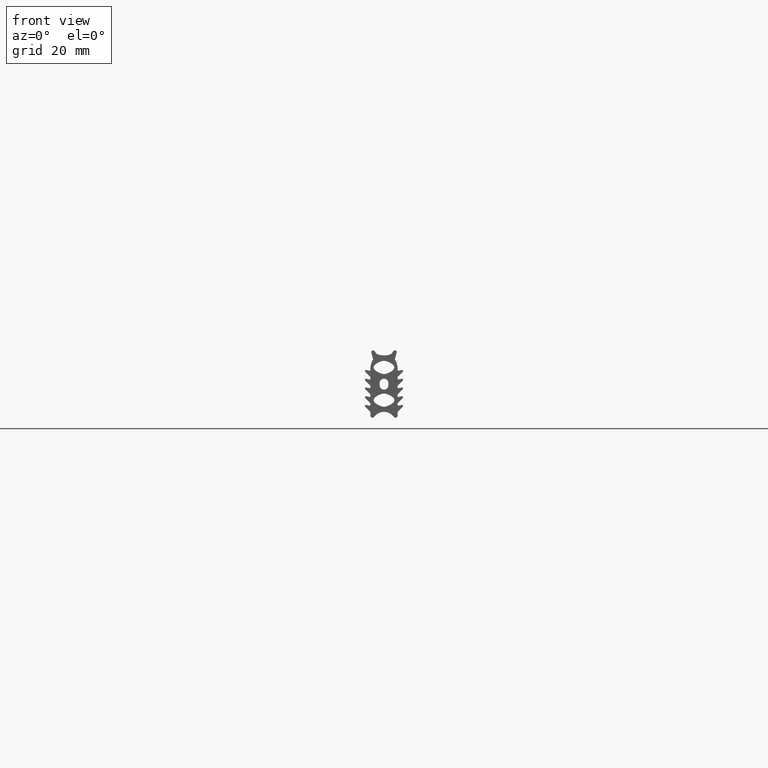
[diagram: clean part render]
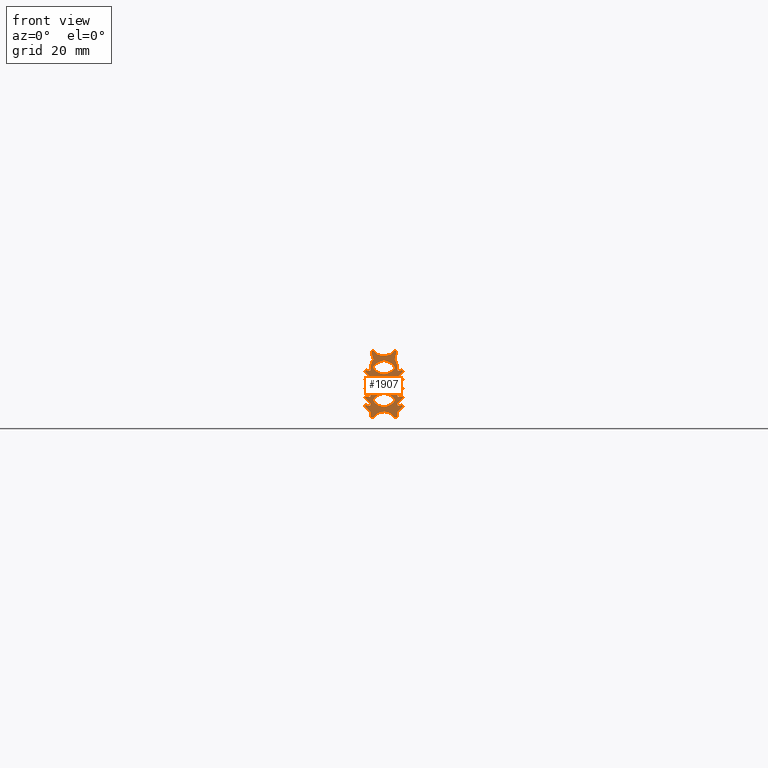
[diagram: same view with one face highlighted and labeled with its STEP entity id]
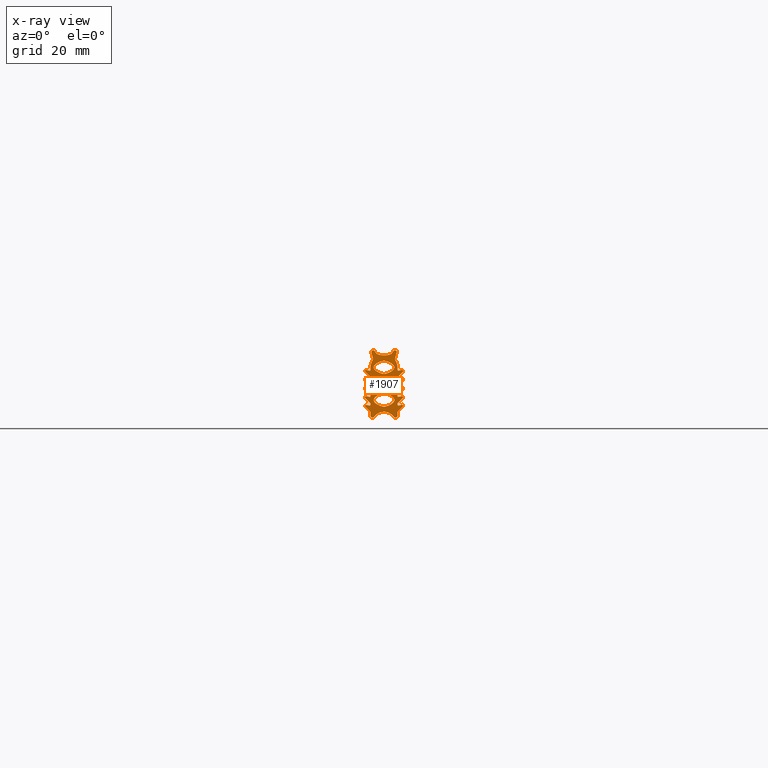
[diagram: x-ray of the same camera — body ghosted, the highlighted face saturated]
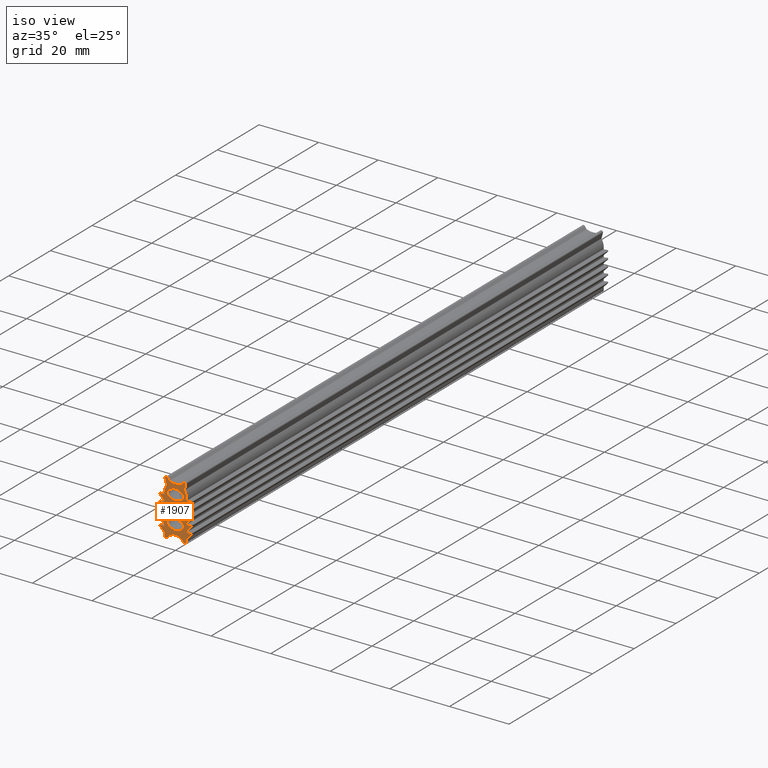
[diagram: same view with one face highlighted and labeled with its STEP entity id]
A machine part, front view. The second image highlights one B-rep face of the part: STEP entity #1907.
The next image is the same camera in x-ray: the body ghosted, the highlighted face saturated — about 0% of this face is hidden behind the body in this view.
A second angle (iso view) of the same face is appended — the face is thin or edge-on in the first view.
In plain terms, the highlighted face is a freeform B-spline surface patch.
Its self-contained STEP definition (entity closure, byte-faithful):
#44=CARTESIAN_POINT('',(-5.774432001884786,0.0,2.341480121871807));
#45=CARTESIAN_POINT('',(5.774432283506338,0.0,2.341480121871807));
#46=CARTESIAN_POINT('',(-5.774432001884786,0.0,-18.006533224527349));
#47=CARTESIAN_POINT('',(5.774432283506338,0.0,-18.006533224527349));
#48=B_SPLINE_SURFACE_WITH_KNOTS('',1,1,((#44,#46),(#45,#47)),.UNSPECIFIED.,.F.,.F.,.U.,(2,2),(2,2),(0.0,11.548864285391121),(0.0,20.348013346399160),.UNSPECIFIED.);
#49=CARTESIAN_POINT('',(2.665481674339295,0.0,-16.836471148593201));
#50=VERTEX_POINT('',#49);
#51=CARTESIAN_POINT('',(-2.665481674348870,0.0,-16.836471148593201));
#52=VERTEX_POINT('',#51);
#53=CARTESIAN_POINT('',(2.665481674339293,0.0,-16.836471148593201));
#54=CARTESIAN_POINT('',(1.676587301582508,0.0,-15.482575694958138));
#55=CARTESIAN_POINT('',(-4.774847E-012,0.0,-15.482575694958140));
#56=CARTESIAN_POINT('',(-1.676587301592067,0.0,-15.482575694958138));
#57=CARTESIAN_POINT('',(-2.665481674348851,0.0,-16.836471148593208));
#65=(BOUNDED_CURVE()B_SPLINE_CURVE(2,(#53,#54,#55,#56,#57),.UNSPECIFIED.,.F.,.U.)B_SPLINE_CURVE_WITH_KNOTS((3,2,3),(0.0,0.500000000000000,1.0),.UNSPECIFIED.)CURVE()GEOMETRIC_REPRESENTATION_ITEM()RATIONAL_B_SPLINE_CURVE((1.0,0.891578868092580,1.0,0.891578868092580,1.0))REPRESENTATION_ITEM(''));
#66=EDGE_CURVE('',#50,#52,#65,.T.);
#67=ORIENTED_EDGE('',*,*,#66,.F.);
#68=CARTESIAN_POINT('',(3.749999999995225,0.0,-16.482575694958150));
#69=VERTEX_POINT('',#68);
#70=CARTESIAN_POINT('',(2.665481674339287,0.0,-16.836471148593208));
#71=CARTESIAN_POINT('',(2.922260673734567,0.0,-17.188027320261067));
#72=CARTESIAN_POINT('',(3.336130336864867,0.0,-17.052975114397501));
#73=CARTESIAN_POINT('',(3.749999999995167,0.0,-16.917922908533939));
#74=CARTESIAN_POINT('',(3.749999999995167,0.0,-16.482575694958150));
#82=(BOUNDED_CURVE()B_SPLINE_CURVE(2,(#70,#71,#72,#73,#74),.UNSPECIFIED.,.F.,.U.)B_SPLINE_CURVE_WITH_KNOTS((3,2,3),(0.0,0.500000000000000,1.0),.UNSPECIFIED.)CURVE()GEOMETRIC_REPRESENTATION_ITEM()RATIONAL_B_SPLINE_CURVE((1.0,0.809387802019568,1.0,0.809387802019568,1.0))REPRESENTATION_ITEM(''));
#83=EDGE_CURVE('',#50,#69,#82,.T.);
#84=ORIENTED_EDGE('',*,*,#83,.T.);
#85=CARTESIAN_POINT('',(3.749999999995225,0.0,-15.506839763670200));
#86=VERTEX_POINT('',#85);
#87=CARTESIAN_POINT('',(3.749999999995225,0.0,-15.506839763670200));
#88=CARTESIAN_POINT('',(3.749999999995225,0.0,-16.482575694958150));
#89=QUASI_UNIFORM_CURVE('',1,(#87,#88),.UNSPECIFIED.,.F.,.U.);
#90=EDGE_CURVE('',#86,#69,#89,.T.);
#91=ORIENTED_EDGE('',*,*,#90,.F.);
#92=CARTESIAN_POINT('',(5.162132034351179,0.0,-14.094707729314139));
#93=VERTEX_POINT('',#92);
#94=CARTESIAN_POINT('',(5.162132034351179,0.0,-14.094707729314139));
#95=CARTESIAN_POINT('',(3.749999999995225,0.0,-15.506839763670200));
#96=QUASI_UNIFORM_CURVE('',1,(#94,#95),.UNSPECIFIED.,.F.,.U.);
#97=EDGE_CURVE('',#93,#86,#96,.T.);
#98=ORIENTED_EDGE('',*,*,#97,.F.);
#99=CARTESIAN_POINT('',(4.888060883031240,0.0,-13.589039418171520));
#100=VERTEX_POINT('',#99);
#101=CARTESIAN_POINT('',(5.162132034351171,0.0,-14.094707729314131));
#102=CARTESIAN_POINT('',(5.320416309178569,0.0,-13.936423454486821));
#103=CARTESIAN_POINT('',(5.213750996831517,0.0,-13.739623214504370));
#104=CARTESIAN_POINT('',(5.107085684484468,0.0,-13.542822974521920));
#105=CARTESIAN_POINT('',(4.888060883031250,0.0,-13.589039418171570));
#113=(BOUNDED_CURVE()B_SPLINE_CURVE(2,(#101,#102,#103,#104,#105),.UNSPECIFIED.,.F.,.U.)B_SPLINE_CURVE_WITH_KNOTS((3,2,3),(0.0,0.500000000000000,1.0),.UNSPECIFIED.)CURVE()GEOMETRIC_REPRESENTATION_ITEM()RATIONAL_B_SPLINE_CURVE((1.0,0.801475150468671,1.0,0.801475150468671,1.0))REPRESENTATION_ITEM(''));
#114=EDGE_CURVE('',#93,#100,#113,.T.);
#115=ORIENTED_EDGE('',*,*,#114,.T.);
#116=CARTESIAN_POINT('',(3.991292744638190,0.0,-13.778266546149180));
#117=VERTEX_POINT('',#116);
#118=CARTESIAN_POINT('',(3.991292744638190,0.0,-13.778266546149180));
#119=CARTESIAN_POINT('',(4.888060883031240,0.0,-13.589039418171520));
#120=QUASI_UNIFORM_CURVE('',1,(#118,#119),.UNSPECIFIED.,.F.,.U.);
#121=EDGE_CURVE('',#117,#100,#120,.T.);
#122=ORIENTED_EDGE('',*,*,#121,.F.);
#123=CARTESIAN_POINT('',(3.749999999995225,0.0,-13.582575694958120));
#124=VERTEX_POINT('',#123);
#125=CARTESIAN_POINT('',(3.749999999995197,0.0,-13.582575694958120));
#126=CARTESIAN_POINT('',(3.749999999995197,0.0,-13.677879976962402));
#127=CARTESIAN_POINT('',(3.824020932147786,0.0,-13.737911700006240));
#128=CARTESIAN_POINT('',(3.898041864300375,0.0,-13.797943423050073));
#129=CARTESIAN_POINT('',(3.991292744638191,0.0,-13.778266546149190));
#137=(BOUNDED_CURVE()B_SPLINE_CURVE(2,(#125,#126,#127,#128,#129),.UNSPECIFIED.,.F.,.U.)B_SPLINE_CURVE_WITH_KNOTS((3,2,3),(0.0,0.500000000000000,1.0),.UNSPECIFIED.)CURVE()GEOMETRIC_REPRESENTATION_ITEM()RATIONAL_B_SPLINE_CURVE((1.0,0.902744520680461,1.0,0.902744520680461,1.0))REPRESENTATION_ITEM(''));
#138=EDGE_CURVE('',#124,#117,#137,.T.);
#139=ORIENTED_EDGE('',*,*,#138,.F.);
#140=CARTESIAN_POINT('',(3.749999999995225,0.0,-13.106839763670120));
#141=VERTEX_POINT('',#140);
#142=CARTESIAN_POINT('',(3.749999999995225,0.0,-13.106839763670120));
#143=CARTESIAN_POINT('',(3.749999999995225,0.0,-13.582575694958120));
#144=QUASI_UNIFORM_CURVE('',1,(#142,#143),.UNSPECIFIED.,.F.,.U.);
#145=EDGE_CURVE('',#141,#124,#144,.T.);
#146=ORIENTED_EDGE('',*,*,#145,.F.);
#147=CARTESIAN_POINT('',(5.162132034351179,0.0,-11.694707729314141));
#148=VERTEX_POINT('',#147);
#149=CARTESIAN_POINT('',(5.162132034351179,0.0,-11.694707729314141));
#150=CARTESIAN_POINT('',(3.749999999995225,0.0,-13.106839763670120));
#151=QUASI_UNIFORM_CURVE('',1,(#149,#150),.UNSPECIFIED.,.F.,.U.);
#152=EDGE_CURVE('',#148,#141,#151,.T.);
#153=ORIENTED_EDGE('',*,*,#152,.F.);
#154=CARTESIAN_POINT('',(4.888060883031240,0.0,-11.189039418171520));
#155=VERTEX_POINT('',#154);
#156=CARTESIAN_POINT('',(5.162132034351173,0.0,-11.694707729314130));
#157=CARTESIAN_POINT('',(5.320416309178566,0.0,-11.536423454486819));
#158=CARTESIAN_POINT('',(5.213750996831517,0.0,-11.339623214504369));
#159=CARTESIAN_POINT('',(5.107085684484468,0.0,-11.142822974521923));
#160=CARTESIAN_POINT('',(4.888060883031240,0.0,-11.189039418171520));
#168=(BOUNDED_CURVE()B_SPLINE_CURVE(2,(#156,#157,#158,#159,#160),.UNSPECIFIED.,.F.,.U.)B_SPLINE_CURVE_WITH_KNOTS((3,2,3),(0.0,0.500000000000000,1.0),.UNSPECIFIED.)CURVE()GEOMETRIC_REPRESENTATION_ITEM()RATIONAL_B_SPLINE_CURVE((1.0,0.801475150468672,1.0,0.801475150468672,1.0))REPRESENTATION_ITEM(''));
#169=EDGE_CURVE('',#148,#155,#168,.T.);
#170=ORIENTED_EDGE('',*,*,#169,.T.);
#171=CARTESIAN_POINT('',(3.991292744638190,0.0,-11.378266546149201));
#172=VERTEX_POINT('',#171);
#173=CARTESIAN_POINT('',(3.991292744638190,0.0,-11.378266546149201));
#174=CARTESIAN_POINT('',(4.888060883031240,0.0,-11.189039418171520));
#175=QUASI_UNIFORM_CURVE('',1,(#173,#174),.UNSPECIFIED.,.F.,.U.);
#176=EDGE_CURVE('',#172,#155,#175,.T.);
#177=ORIENTED_EDGE('',*,*,#176,.F.);
#178=CARTESIAN_POINT('',(3.749999999995225,0.0,-11.182575694958119));
#179=VERTEX_POINT('',#178);
#180=CARTESIAN_POINT('',(3.749999999995197,0.0,-11.182575694958119));
#181=CARTESIAN_POINT('',(3.749999999995197,0.0,-11.277879976962398));
#182=CARTESIAN_POINT('',(3.824020932147784,0.0,-11.337911700006240));
#183=CARTESIAN_POINT('',(3.898041864300373,0.0,-11.397943423050080));
#184=CARTESIAN_POINT('',(3.991292744638188,0.0,-11.378266546149190));
#192=(BOUNDED_CURVE()B_SPLINE_CURVE(2,(#180,#181,#182,#183,#184),.UNSPECIFIED.,.F.,.U.)B_SPLINE_CURVE_WITH_KNOTS((3,2,3),(0.0,0.500000000000000,1.0),.UNSPECIFIED.)CURVE()GEOMETRIC_REPRESENTATION_ITEM()RATIONAL_B_SPLINE_CURVE((1.0,0.902744520680463,1.0,0.902744520680463,1.0))REPRESENTATION_ITEM(''));
#193=EDGE_CURVE('',#179,#172,#192,.T.);
#194=ORIENTED_EDGE('',*,*,#193,.F.);
#195=CARTESIAN_POINT('',(3.749999999995225,0.0,-10.706839763670059));
#196=VERTEX_POINT('',#195);
#197=CARTESIAN_POINT('',(3.749999999995225,0.0,-10.706839763670059));
#198=CARTESIAN_POINT('',(3.749999999995225,0.0,-11.182575694958119));
#199=QUASI_UNIFORM_CURVE('',1,(#197,#198),.UNSPECIFIED.,.F.,.U.);
#200=EDGE_CURVE('',#196,#179,#199,.T.);
#201=ORIENTED_EDGE('',*,*,#200,.F.);
#202=CARTESIAN_POINT('',(5.162132034351170,0.0,-9.294707729314110));
#203=VERTEX_POINT('',#202);
#204=CARTESIAN_POINT('',(5.162132034351170,0.0,-9.294707729314110));
#205=CARTESIAN_POINT('',(3.749999999995225,0.0,-10.706839763670059));
#206=QUASI_UNIFORM_CURVE('',1,(#204,#205),.UNSPECIFIED.,.F.,.U.);
#207=EDGE_CURVE('',#203,#196,#206,.T.);
#208=ORIENTED_EDGE('',*,*,#207,.F.);
#209=CARTESIAN_POINT('',(4.888060883031240,0.0,-8.789039418171528));
#210=VERTEX_POINT('',#209);
#211=CARTESIAN_POINT('',(5.162132034351171,0.0,-9.294707729314112));
#212=CARTESIAN_POINT('',(5.320416309178548,0.0,-9.136423454486804));
#213=CARTESIAN_POINT('',(5.213750996831501,0.0,-8.939623214504373));
#214=CARTESIAN_POINT('',(5.107085684484455,0.0,-8.742822974521943));
#215=CARTESIAN_POINT('',(4.888060883031240,0.0,-8.789039418171528));
#223=(BOUNDED_CURVE()B_SPLINE_CURVE(2,(#211,#212,#213,#214,#215),.UNSPECIFIED.,.F.,.U.)B_SPLINE_CURVE_WITH_KNOTS((3,2,3),(0.0,0.500000000000000,1.0),.UNSPECIFIED.)CURVE()GEOMETRIC_REPRESENTATION_ITEM()RATIONAL_B_SPLINE_CURVE((1.0,0.801475150468678,1.0,0.801475150468678,1.0))REPRESENTATION_ITEM(''));
#224=EDGE_CURVE('',#203,#210,#223,.T.);
#225=ORIENTED_EDGE('',*,*,#224,.T.);
#226=CARTESIAN_POINT('',(3.991292744638190,0.0,-8.978266546149191));
#227=VERTEX_POINT('',#226);
#228=CARTESIAN_POINT('',(3.991292744638190,0.0,-8.978266546149191));
#229=CARTESIAN_POINT('',(4.888060883031240,0.0,-8.789039418171528));
#230=QUASI_UNIFORM_CURVE('',1,(#228,#229),.UNSPECIFIED.,.F.,.U.);
#231=EDGE_CURVE('',#227,#210,#230,.T.);
#232=ORIENTED_EDGE('',*,*,#231,.F.);
#233=CARTESIAN_POINT('',(3.749999999995225,0.0,-8.782575694958130));
#234=VERTEX_POINT('',#233);
#235=CARTESIAN_POINT('',(3.749999999995197,0.0,-8.782575694958130));
#236=CARTESIAN_POINT('',(3.749999999995197,0.0,-8.877879976962406));
#237=CARTESIAN_POINT('',(3.824020932147786,0.0,-8.937911700006245));
#238=CARTESIAN_POINT('',(3.898041864300375,0.0,-8.997943423050085));
#239=CARTESIAN_POINT('',(3.991292744638191,0.0,-8.978266546149197));
#247=(BOUNDED_CURVE()B_SPLINE_CURVE(2,(#235,#236,#237,#238,#239),.UNSPECIFIED.,.F.,.U.)B_SPLINE_CURVE_WITH_KNOTS((3,2,3),(0.0,0.500000000000000,1.0),.UNSPECIFIED.)CURVE()GEOMETRIC_REPRESENTATION_ITEM()RATIONAL_B_SPLINE_CURVE((1.0,0.902744520680461,1.0,0.902744520680461,1.0))REPRESENTATION_ITEM(''));
#248=EDGE_CURVE('',#234,#227,#247,.T.);
#249=ORIENTED_EDGE('',*,*,#248,.F.);
#250=CARTESIAN_POINT('',(3.749999999995170,0.0,-8.306839763670130));
#251=VERTEX_POINT('',#250);
#252=CARTESIAN_POINT('',(3.749999999995170,0.0,-8.306839763670130));
#253=CARTESIAN_POINT('',(3.749999999995225,0.0,-8.782575694958130));
#254=QUASI_UNIFORM_CURVE('',1,(#252,#253),.UNSPECIFIED.,.F.,.U.);
#255=EDGE_CURVE('',#251,#234,#254,.T.);
#256=ORIENTED_EDGE('',*,*,#255,.F.);
#257=CARTESIAN_POINT('',(5.162132034351139,0.0,-6.894707729318120));
#258=VERTEX_POINT('',#257);
#259=CARTESIAN_POINT('',(5.162132034351139,0.0,-6.894707729318120));
#260=CARTESIAN_POINT('',(3.749999999995170,0.0,-8.306839763670130));
#261=QUASI_UNIFORM_CURVE('',1,(#259,#260),.UNSPECIFIED.,.F.,.U.);
#262=EDGE_CURVE('',#258,#251,#261,.T.);
#263=ORIENTED_EDGE('',*,*,#262,.F.);
#264=CARTESIAN_POINT('',(4.888060883031930,0.0,-6.389039418171440));
#265=VERTEX_POINT('',#264);
#266=CARTESIAN_POINT('',(5.162132034351142,0.0,-6.894707729318123));
#267=CARTESIAN_POINT('',(5.320416309181105,0.0,-6.736423454490763));
#268=CARTESIAN_POINT('',(5.213750996834057,0.0,-6.539623214506213));
#269=CARTESIAN_POINT('',(5.107085684487009,0.0,-6.342822974521662));
#270=CARTESIAN_POINT('',(4.888060883031930,0.0,-6.389039418171440));
#278=(BOUNDED_CURVE()B_SPLINE_CURVE(2,(#266,#267,#268,#269,#270),.UNSPECIFIED.,.F.,.U.)B_SPLINE_CURVE_WITH_KNOTS((3,2,3),(0.0,0.500000000000000,1.0),.UNSPECIFIED.)CURVE()GEOMETRIC_REPRESENTATION_ITEM()RATIONAL_B_SPLINE_CURVE((1.0,0.801475150467630,1.0,0.801475150467630,1.0))REPRESENTATION_ITEM(''));
#279=EDGE_CURVE('',#258,#265,#278,.T.);
#280=ORIENTED_EDGE('',*,*,#279,.T.);
#281=CARTESIAN_POINT('',(3.991292744638385,0.0,-6.578266546149160));
#282=VERTEX_POINT('',#281);
#283=CARTESIAN_POINT('',(3.991292744638385,0.0,-6.578266546149160));
#284=CARTESIAN_POINT('',(4.888060883031930,0.0,-6.389039418171440));
#285=QUASI_UNIFORM_CURVE('',1,(#283,#284),.UNSPECIFIED.,.F.,.U.);
#286=EDGE_CURVE('',#282,#265,#285,.T.);
#287=ORIENTED_EDGE('',*,*,#286,.F.);
#288=CARTESIAN_POINT('',(3.749999999995225,0.0,-6.382575694958140));
#289=VERTEX_POINT('',#288);
#290=CARTESIAN_POINT('',(3.749999999995225,0.0,-6.382575694958140));
#291=CARTESIAN_POINT('',(3.749999999995197,0.0,-6.477879976962479));
#292=CARTESIAN_POINT('',(3.824020932147863,0.0,-6.537911700006319));
#293=CARTESIAN_POINT('',(3.898041864300530,0.0,-6.597943423050160));
#294=CARTESIAN_POINT('',(3.991292744638386,0.0,-6.578266546149166));
#302=(BOUNDED_CURVE()B_SPLINE_CURVE(2,(#290,#291,#292,#293,#294),.UNSPECIFIED.,.F.,.U.)B_SPLINE_CURVE_WITH_KNOTS((3,2,3),(0.0,0.500000000000000,1.0),.UNSPECIFIED.)CURVE()GEOMETRIC_REPRESENTATION_ITEM()RATIONAL_B_SPLINE_CURVE((1.0,0.902744520680354,1.0,0.902744520680354,1.0))REPRESENTATION_ITEM(''));
#303=EDGE_CURVE('',#289,#282,#302,.T.);
#304=ORIENTED_EDGE('',*,*,#303,.F.);
#305=CARTESIAN_POINT('',(3.749999999995225,0.0,-5.906839763668150));
#306=VERTEX_POINT('',#305);
#307=CARTESIAN_POINT('',(3.749999999995225,0.0,-5.906839763668150));
#308=CARTESIAN_POINT('',(3.749999999995225,0.0,-6.382575694958140));
#309=QUASI_UNIFORM_CURVE('',1,(#307,#308),.UNSPECIFIED.,.F.,.U.);
#310=EDGE_CURVE('',#306,#289,#309,.T.);
#311=ORIENTED_EDGE('',*,*,#310,.F.);
#312=CARTESIAN_POINT('',(5.162132034351139,0.0,-4.494707729318100));
#313=VERTEX_POINT('',#312);
#314=CARTESIAN_POINT('',(5.162132034351139,0.0,-4.494707729318100));
#315=CARTESIAN_POINT('',(3.749999999995225,0.0,-5.906839763668150));
#316=QUASI_UNIFORM_CURVE('',1,(#314,#315),.UNSPECIFIED.,.F.,.U.);
#317=EDGE_CURVE('',#313,#306,#316,.T.);
#318=ORIENTED_EDGE('',*,*,#317,.F.);
#319=CARTESIAN_POINT('',(4.888060883031869,0.0,-3.989039418171430));
#320=VERTEX_POINT('',#319);
#321=CARTESIAN_POINT('',(5.162132034351142,0.0,-4.494707729318103));
#322=CARTESIAN_POINT('',(5.320416309181108,0.0,-4.336423454490730));
#323=CARTESIAN_POINT('',(5.213750996834031,0.0,-4.139623214506182));
#324=CARTESIAN_POINT('',(5.107085684486957,0.0,-3.942822974521634));
#325=CARTESIAN_POINT('',(4.888060883031869,0.0,-3.989039418171430));
#333=(BOUNDED_CURVE()B_SPLINE_CURVE(2,(#321,#322,#323,#324,#325),.UNSPECIFIED.,.F.,.U.)B_SPLINE_CURVE_WITH_KNOTS((3,2,3),(0.0,0.500000000000000,1.0),.UNSPECIFIED.)CURVE()GEOMETRIC_REPRESENTATION_ITEM()RATIONAL_B_SPLINE_CURVE((1.0,0.801475150467606,1.0,0.801475150467606,1.0))REPRESENTATION_ITEM(''));
#334=EDGE_CURVE('',#313,#320,#333,.T.);
#335=ORIENTED_EDGE('',*,*,#334,.T.);
#336=CARTESIAN_POINT('',(3.991292744638385,0.0,-4.178266546149155));
#337=VERTEX_POINT('',#336);
#338=CARTESIAN_POINT('',(3.991292744638385,0.0,-4.178266546149155));
#339=CARTESIAN_POINT('',(4.888060883031869,0.0,-3.989039418171430));
#340=QUASI_UNIFORM_CURVE('',1,(#338,#339),.UNSPECIFIED.,.F.,.U.);
#341=EDGE_CURVE('',#337,#320,#340,.T.);
#342=ORIENTED_EDGE('',*,*,#341,.F.);
#343=CARTESIAN_POINT('',(3.749999999995225,0.0,-3.982575694958130));
#344=VERTEX_POINT('',#343);
#345=CARTESIAN_POINT('',(3.749999999995225,0.0,-3.982575694958130));
#346=CARTESIAN_POINT('',(3.749999999995197,0.0,-4.077879976962466));
#347=CARTESIAN_POINT('',(3.824020932147863,0.0,-4.137911700006309));
#348=CARTESIAN_POINT('',(3.898041864300529,0.0,-4.197943423050150));
#349=CARTESIAN_POINT('',(3.991292744638385,0.0,-4.178266546149156));
#357=(BOUNDED_CURVE()B_SPLINE_CURVE(2,(#345,#346,#347,#348,#349),.UNSPECIFIED.,.F.,.U.)B_SPLINE_CURVE_WITH_KNOTS((3,2,3),(0.0,0.500000000000000,1.0),.UNSPECIFIED.)CURVE()GEOMETRIC_REPRESENTATION_ITEM()RATIONAL_B_SPLINE_CURVE((1.0,0.902744520680355,1.0,0.902744520680355,1.0))REPRESENTATION_ITEM(''));
#358=EDGE_CURVE('',#344,#337,#357,.T.);
#359=ORIENTED_EDGE('',*,*,#358,.F.);
#360=CARTESIAN_POINT('',(3.749999999995195,0.0,-3.499999999998125));
#361=VERTEX_POINT('',#360);
#362=CARTESIAN_POINT('',(3.749999999995195,0.0,-3.499999999998125));
#363=CARTESIAN_POINT('',(3.749999999995225,0.0,-3.982575694958130));
#364=QUASI_UNIFORM_CURVE('',1,(#362,#363),.UNSPECIFIED.,.F.,.U.);
#365=EDGE_CURVE('',#361,#344,#364,.T.);
#366=ORIENTED_EDGE('',*,*,#365,.F.);
#367=CARTESIAN_POINT('',(2.982511100848340,0.0,-1.079696807726578));
#368=VERTEX_POINT('',#367);
#369=CARTESIAN_POINT('',(3.749999999995195,0.0,-3.499999999998125));
#370=CARTESIAN_POINT('',(3.749999999995180,0.0,-2.168161333375783));
#371=CARTESIAN_POINT('',(2.982511100848339,0.0,-1.079696807726579));
#379=(BOUNDED_CURVE()B_SPLINE_CURVE(2,(#369,#370,#371),.UNSPECIFIED.,.F.,.U.)CURVE()GEOMETRIC_REPRESENTATION_ITEM()QUASI_UNIFORM_CURVE()RATIONAL_B_SPLINE_CURVE((1.0,0.953222048586315,1.0))REPRESENTATION_ITEM(''));
#380=EDGE_CURVE('',#361,#368,#379,.T.);
#381=ORIENTED_EDGE('',*,*,#380,.T.);
#382=CARTESIAN_POINT('',(3.482962913140195,0.0,0.788014782491890));
#383=VERTEX_POINT('',#382);
#384=CARTESIAN_POINT('',(3.482962913140195,0.0,0.788014782491890));
#385=CARTESIAN_POINT('',(2.982511100848340,0.0,-1.079696807726578));
#386=QUASI_UNIFORM_CURVE('',1,(#384,#385),.UNSPECIFIED.,.F.,.U.);
#387=EDGE_CURVE('',#383,#368,#386,.T.);
#388=ORIENTED_EDGE('',*,*,#387,.F.);
#389=CARTESIAN_POINT('',(2.599999999995190,0.0,1.217424305041916));
#390=VERTEX_POINT('',#389);
#391=CARTESIAN_POINT('',(3.482962913140195,0.0,0.788014782491890));
#392=CARTESIAN_POINT('',(3.589763332405539,0.0,1.186599373464099));
#393=CARTESIAN_POINT('',(3.218675206073868,0.0,1.367069892417709));
#394=CARTESIAN_POINT('',(2.847587079742195,0.0,1.547540411371320));
#395=CARTESIAN_POINT('',(2.599999999995190,0.0,1.217424305041916));
#403=(BOUNDED_CURVE()B_SPLINE_CURVE(2,(#391,#392,#393,#394,#395),.UNSPECIFIED.,.F.,.U.)B_SPLINE_CURVE_WITH_KNOTS((3,2,3),(0.0,0.500000000000000,1.0),.UNSPECIFIED.)CURVE()GEOMETRIC_REPRESENTATION_ITEM()RATIONAL_B_SPLINE_CURVE((1.0,0.771263371075391,1.0,0.771263371075391,1.0))REPRESENTATION_ITEM(''));
#404=EDGE_CURVE('',#383,#390,#403,.T.);
#405=ORIENTED_EDGE('',*,*,#404,.T.);
#406=CARTESIAN_POINT('',(1.999999999995220,0.0,0.417424305041910));
#407=VERTEX_POINT('',#406);
#408=CARTESIAN_POINT('',(1.999999999995220,0.0,0.417424305041910));
#409=CARTESIAN_POINT('',(2.599999999995190,0.0,1.217424305041916));
#410=QUASI_UNIFORM_CURVE('',1,(#408,#409),.UNSPECIFIED.,.F.,.U.);
#411=EDGE_CURVE('',#407,#390,#410,.T.);
#412=ORIENTED_EDGE('',*,*,#411,.F.);
#413=CARTESIAN_POINT('',(-2.000000000003190,0.0,0.417424305045387));
#414=VERTEX_POINT('',#413);
#415=CARTESIAN_POINT('',(-2.000000000003188,0.0,0.417424305045390));
#416=CARTESIAN_POINT('',(-4.745336E-012,0.0,-0.455447255899168));
#417=CARTESIAN_POINT('',(1.999999999995217,0.0,0.417424305041912));
#425=(BOUNDED_CURVE()B_SPLINE_CURVE(2,(#415,#416,#417),.UNSPECIFIED.,.F.,.U.)CURVE()GEOMETRIC_REPRESENTATION_ITEM()QUASI_UNIFORM_CURVE()RATIONAL_B_SPLINE_CURVE((1.0,0.916515138991303,1.0))REPRESENTATION_ITEM(''));
#426=EDGE_CURVE('',#414,#407,#425,.T.);
#427=ORIENTED_EDGE('',*,*,#426,.F.);
#428=CARTESIAN_POINT('',(-2.600000000004800,0.0,1.217424305041880));
#429=VERTEX_POINT('',#428);
#430=CARTESIAN_POINT('',(-2.600000000004800,0.0,1.217424305041880));
#431=CARTESIAN_POINT('',(-2.000000000003190,0.0,0.417424305045387));
#432=QUASI_UNIFORM_CURVE('',1,(#430,#431),.UNSPECIFIED.,.F.,.U.);
#433=EDGE_CURVE('',#429,#414,#432,.T.);
#434=ORIENTED_EDGE('',*,*,#433,.F.);
#435=CARTESIAN_POINT('',(-3.482962913149555,0.0,0.788014782491928));
#436=VERTEX_POINT('',#435);
#437=CARTESIAN_POINT('',(-2.600000000004797,0.0,1.217424305041882));
#438=CARTESIAN_POINT('',(-2.847587079751793,0.0,1.547540411371190));
#439=CARTESIAN_POINT('',(-3.218675206083387,0.0,1.367069892417610));
#440=CARTESIAN_POINT('',(-3.589763332414983,0.0,1.186599373464029));
#441=CARTESIAN_POINT('',(-3.482962913149555,0.0,0.788014782491928));
#449=(BOUNDED_CURVE()B_SPLINE_CURVE(2,(#437,#438,#439,#440,#441),.UNSPECIFIED.,.F.,.U.)B_SPLINE_CURVE_WITH_KNOTS((3,2,3),(0.0,0.500000000000000,1.0),.UNSPECIFIED.)CURVE()GEOMETRIC_REPRESENTATION_ITEM()RATIONAL_B_SPLINE_CURVE((1.0,0.771263371075386,1.0,0.771263371075386,1.0))REPRESENTATION_ITEM(''));
#450=EDGE_CURVE('',#429,#436,#449,.T.);
#451=ORIENTED_EDGE('',*,*,#450,.T.);
#452=CARTESIAN_POINT('',(-2.982511100855675,0.0,-1.079696807728122));
#453=VERTEX_POINT('',#452);
#454=CARTESIAN_POINT('',(-2.982511100855675,0.0,-1.079696807728122));
#455=CARTESIAN_POINT('',(-3.482962913149555,0.0,0.788014782491928));
#456=QUASI_UNIFORM_CURVE('',1,(#454,#455),.UNSPECIFIED.,.F.,.U.);
#457=EDGE_CURVE('',#453,#436,#456,.T.);
#458=ORIENTED_EDGE('',*,*,#457,.F.);
#459=CARTESIAN_POINT('',(-3.750000000004770,0.0,-3.499999999998125));
#460=VERTEX_POINT('',#459);
#461=CARTESIAN_POINT('',(-2.982511100855674,0.0,-1.079696807728124));
#462=CARTESIAN_POINT('',(-3.750000000003365,0.0,-2.168161333376209));
#463=CARTESIAN_POINT('',(-3.750000000004770,0.0,-3.499999999998125));
#471=(BOUNDED_CURVE()B_SPLINE_CURVE(2,(#461,#462,#463),.UNSPECIFIED.,.F.,.U.)CURVE()GEOMETRIC_REPRESENTATION_ITEM()QUASI_UNIFORM_CURVE()RATIONAL_B_SPLINE_CURVE((1.0,0.953222048586313,1.0))REPRESENTATION_ITEM(''));
#472=EDGE_CURVE('',#453,#460,#471,.T.);
#473=ORIENTED_EDGE('',*,*,#472,.T.);
#474=CARTESIAN_POINT('',(-3.750000000004850,0.0,-3.982575694958130));
#475=VERTEX_POINT('',#474);
#476=CARTESIAN_POINT('',(-3.750000000004850,0.0,-3.982575694958130));
#477=CARTESIAN_POINT('',(-3.750000000004770,0.0,-3.499999999998125));
#478=QUASI_UNIFORM_CURVE('',1,(#476,#477),.UNSPECIFIED.,.F.,.U.);
#479=EDGE_CURVE('',#475,#460,#478,.T.);
#480=ORIENTED_EDGE('',*,*,#479,.F.);
#481=CARTESIAN_POINT('',(-3.991292744647920,0.0,-4.178266546149075));
#482=VERTEX_POINT('',#481);
#483=CARTESIAN_POINT('',(-3.991292744647920,0.0,-4.178266546149075));
#484=CARTESIAN_POINT('',(-3.898041864310106,0.0,-4.197943423050042));
#485=CARTESIAN_POINT('',(-3.824020932157477,0.0,-4.137911700006232));
#486=CARTESIAN_POINT('',(-3.750000000004848,0.0,-4.077879976962420));
#487=CARTESIAN_POINT('',(-3.750000000004848,0.0,-3.982575694958130));
#495=(BOUNDED_CURVE()B_SPLINE_CURVE(2,(#483,#484,#485,#486,#487),.UNSPECIFIED.,.F.,.U.)B_SPLINE_CURVE_WITH_KNOTS((3,2,3),(0.0,0.500000000000000,1.0),.UNSPECIFIED.)CURVE()GEOMETRIC_REPRESENTATION_ITEM()RATIONAL_B_SPLINE_CURVE((1.0,0.902744520680354,1.0,0.902744520680354,1.0))REPRESENTATION_ITEM(''));
#496=EDGE_CURVE('',#482,#475,#495,.T.);
#497=ORIENTED_EDGE('',*,*,#496,.F.);
#498=CARTESIAN_POINT('',(-4.888060883041299,0.0,-3.989039418170520));
#499=VERTEX_POINT('',#498);
#500=CARTESIAN_POINT('',(-4.888060883041299,0.0,-3.989039418170520));
#501=CARTESIAN_POINT('',(-3.991292744647920,0.0,-4.178266546149075));
#502=QUASI_UNIFORM_CURVE('',1,(#500,#501),.UNSPECIFIED.,.F.,.U.);
#503=EDGE_CURVE('',#499,#482,#502,.T.);
#504=ORIENTED_EDGE('',*,*,#503,.F.);
#505=CARTESIAN_POINT('',(-5.162132034358709,0.0,-4.494707729316075));
#506=VERTEX_POINT('',#505);
#507=CARTESIAN_POINT('',(-4.888060883041299,0.0,-3.989039418170520));
#508=CARTESIAN_POINT('',(-5.107085684496099,0.0,-3.942822974521080));
#509=CARTESIAN_POINT('',(-5.213750996842717,0.0,-4.139623214505472));
#510=CARTESIAN_POINT('',(-5.320416309189334,0.0,-4.336423454489867));
#511=CARTESIAN_POINT('',(-5.162132034358709,0.0,-4.494707729316075));
#519=(BOUNDED_CURVE()B_SPLINE_CURVE(2,(#507,#508,#509,#510,#511),.UNSPECIFIED.,.F.,.U.)B_SPLINE_CURVE_WITH_KNOTS((3,2,3),(0.0,0.500000000000000,1.0),.UNSPECIFIED.)CURVE()GEOMETRIC_REPRESENTATION_ITEM()RATIONAL_B_SPLINE_CURVE((1.0,0.801475150467631,1.0,0.801475150467631,1.0))REPRESENTATION_ITEM(''));
#520=EDGE_CURVE('',#499,#506,#519,.T.);
#521=ORIENTED_EDGE('',*,*,#520,.T.);
#522=CARTESIAN_POINT('',(-3.750000000007730,0.0,-5.906839763671120));
#523=VERTEX_POINT('',#522);
#524=CARTESIAN_POINT('',(-3.750000000007730,0.0,-5.906839763671120));
#525=CARTESIAN_POINT('',(-5.162132034358709,0.0,-4.494707729316075));
#526=QUASI_UNIFORM_CURVE('',1,(#524,#525),.UNSPECIFIED.,.F.,.U.);
#527=EDGE_CURVE('',#523,#506,#526,.T.);
#528=ORIENTED_EDGE('',*,*,#527,.F.);
#529=CARTESIAN_POINT('',(-3.750000000004835,0.0,-6.382575694958140));
#530=VERTEX_POINT('',#529);
#531=CARTESIAN_POINT('',(-3.750000000004835,0.0,-6.382575694958140));
#532=CARTESIAN_POINT('',(-3.750000000007730,0.0,-5.906839763671120));
#533=QUASI_UNIFORM_CURVE('',1,(#531,#532),.UNSPECIFIED.,.F.,.U.);
#534=EDGE_CURVE('',#530,#523,#533,.T.);
#535=ORIENTED_EDGE('',*,*,#534,.F.);
#536=CARTESIAN_POINT('',(-3.991292744647920,0.0,-6.578266546149070));
#537=VERTEX_POINT('',#536);
#538=CARTESIAN_POINT('',(-3.991292744647922,0.0,-6.578266546149079));
#539=CARTESIAN_POINT('',(-3.898041864310105,0.0,-6.597943423050069));
#540=CARTESIAN_POINT('',(-3.824020932157470,0.0,-6.537911700006253));
#541=CARTESIAN_POINT('',(-3.750000000004833,0.0,-6.477879976962437));
#542=CARTESIAN_POINT('',(-3.750000000004834,0.0,-6.382575694958140));
#550=(BOUNDED_CURVE()B_SPLINE_CURVE(2,(#538,#539,#540,#541,#542),.UNSPECIFIED.,.F.,.U.)B_SPLINE_CURVE_WITH_KNOTS((3,2,3),(0.0,0.500000000000000,1.0),.UNSPECIFIED.)CURVE()GEOMETRIC_REPRESENTATION_ITEM()RATIONAL_B_SPLINE_CURVE((1.0,0.902744520680352,1.0,0.902744520680352,1.0))REPRESENTATION_ITEM(''));
#551=EDGE_CURVE('',#537,#530,#550,.T.);
#552=ORIENTED_EDGE('',*,*,#551,.F.);
#553=CARTESIAN_POINT('',(-4.888060883041310,0.0,-6.389039418170500));
#554=VERTEX_POINT('',#553);
#555=CARTESIAN_POINT('',(-4.888060883041310,0.0,-6.389039418170500));
#556=CARTESIAN_POINT('',(-3.991292744647920,0.0,-6.578266546149070));
#557=QUASI_UNIFORM_CURVE('',1,(#555,#556),.UNSPECIFIED.,.F.,.U.);
#558=EDGE_CURVE('',#554,#537,#557,.T.);
#559=ORIENTED_EDGE('',*,*,#558,.F.);
#560=CARTESIAN_POINT('',(-5.162132034358709,0.0,-6.894707729316120));
#561=VERTEX_POINT('',#560);
#562=CARTESIAN_POINT('',(-4.888060883041310,0.0,-6.389039418170500));
#563=CARTESIAN_POINT('',(-5.107085684496129,0.0,-6.342822974521066));
#564=CARTESIAN_POINT('',(-5.213750996842741,0.0,-6.539623214505483));
#565=CARTESIAN_POINT('',(-5.320416309189352,0.0,-6.736423454489900));
#566=CARTESIAN_POINT('',(-5.162132034358709,0.0,-6.894707729316120));
#574=(BOUNDED_CURVE()B_SPLINE_CURVE(2,(#562,#563,#564,#565,#566),.UNSPECIFIED.,.F.,.U.)B_SPLINE_CURVE_WITH_KNOTS((3,2,3),(0.0,0.500000000000000,1.0),.UNSPECIFIED.)CURVE()GEOMETRIC_REPRESENTATION_ITEM()RATIONAL_B_SPLINE_CURVE((1.0,0.801475150467620,1.0,0.801475150467620,1.0))REPRESENTATION_ITEM(''));
#575=EDGE_CURVE('',#554,#561,#574,.T.);
#576=ORIENTED_EDGE('',*,*,#575,.T.);
#577=CARTESIAN_POINT('',(-3.750000000006820,0.0,-8.306839763672119));
#578=VERTEX_POINT('',#577);
#579=CARTESIAN_POINT('',(-3.750000000006820,0.0,-8.306839763672119));
#580=CARTESIAN_POINT('',(-5.162132034358709,0.0,-6.894707729316120));
#581=QUASI_UNIFORM_CURVE('',1,(#579,#580),.UNSPECIFIED.,.F.,.U.);
#582=EDGE_CURVE('',#578,#561,#581,.T.);
#583=ORIENTED_EDGE('',*,*,#582,.F.);
#584=CARTESIAN_POINT('',(-3.750000000004845,0.0,-8.782575694958130));
#585=VERTEX_POINT('',#584);
#586=CARTESIAN_POINT('',(-3.750000000004845,0.0,-8.782575694958130));
#587=CARTESIAN_POINT('',(-3.750000000006820,0.0,-8.306839763672119));
#588=QUASI_UNIFORM_CURVE('',1,(#586,#587),.UNSPECIFIED.,.F.,.U.);
#589=EDGE_CURVE('',#585,#578,#588,.T.);
#590=ORIENTED_EDGE('',*,*,#589,.F.);
#591=CARTESIAN_POINT('',(-3.991292744647750,0.0,-8.978266546149129));
#592=VERTEX_POINT('',#591);
#593=CARTESIAN_POINT('',(-3.991292744647750,0.0,-8.978266546149129));
#594=CARTESIAN_POINT('',(-3.898041864309969,0.0,-8.997943423049986));
#595=CARTESIAN_POINT('',(-3.824020932157408,0.0,-8.937911700006174));
#596=CARTESIAN_POINT('',(-3.750000000004847,0.0,-8.877879976962365));
#597=CARTESIAN_POINT('',(-3.750000000004847,0.0,-8.782575694958130));
#605=(BOUNDED_CURVE()B_SPLINE_CURVE(2,(#593,#594,#595,#596,#597),.UNSPECIFIED.,.F.,.U.)B_SPLINE_CURVE_WITH_KNOTS((3,2,3),(0.0,0.500000000000000,1.0),.UNSPECIFIED.)CURVE()GEOMETRIC_REPRESENTATION_ITEM()RATIONAL_B_SPLINE_CURVE((1.0,0.902744520680449,1.0,0.902744520680449,1.0))REPRESENTATION_ITEM(''));
#606=EDGE_CURVE('',#592,#585,#605,.T.);
#607=ORIENTED_EDGE('',*,*,#606,.F.);
#608=CARTESIAN_POINT('',(-4.888060883040910,0.0,-8.789039418171589));
#609=VERTEX_POINT('',#608);
#610=CARTESIAN_POINT('',(-4.888060883040910,0.0,-8.789039418171589));
#611=CARTESIAN_POINT('',(-3.991292744647750,0.0,-8.978266546149129));
#612=QUASI_UNIFORM_CURVE('',1,(#610,#611),.UNSPECIFIED.,.F.,.U.);
#613=EDGE_CURVE('',#609,#592,#612,.T.);
#614=ORIENTED_EDGE('',*,*,#613,.F.);
#615=CARTESIAN_POINT('',(-5.162132034360750,0.0,-9.294707729314130));
#616=VERTEX_POINT('',#615);
#617=CARTESIAN_POINT('',(-4.888060883040909,0.0,-8.789039418171589));
#618=CARTESIAN_POINT('',(-5.107085684494066,0.0,-8.742822974522035));
#619=CARTESIAN_POINT('',(-5.213750996841052,0.0,-8.939623214504428));
#620=CARTESIAN_POINT('',(-5.320416309188037,0.0,-9.136423454486820));
#621=CARTESIAN_POINT('',(-5.162132034360750,0.0,-9.294707729314130));
#629=(BOUNDED_CURVE()B_SPLINE_CURVE(2,(#617,#618,#619,#620,#621),.UNSPECIFIED.,.F.,.U.)B_SPLINE_CURVE_WITH_KNOTS((3,2,3),(0.0,0.500000000000000,1.0),.UNSPECIFIED.)CURVE()GEOMETRIC_REPRESENTATION_ITEM()RATIONAL_B_SPLINE_CURVE((1.0,0.801475150468734,1.0,0.801475150468734,1.0))REPRESENTATION_ITEM(''));
#630=EDGE_CURVE('',#609,#616,#629,.T.);
#631=ORIENTED_EDGE('',*,*,#630,.T.);
#632=CARTESIAN_POINT('',(-3.750000000004770,0.0,-10.706839763670139));
#633=VERTEX_POINT('',#632);
#634=CARTESIAN_POINT('',(-3.750000000004770,0.0,-10.706839763670139));
#635=CARTESIAN_POINT('',(-5.162132034360750,0.0,-9.294707729314130));
#636=QUASI_UNIFORM_CURVE('',1,(#634,#635),.UNSPECIFIED.,.F.,.U.);
#637=EDGE_CURVE('',#633,#616,#636,.T.);
#638=ORIENTED_EDGE('',*,*,#637,.F.);
#639=CARTESIAN_POINT('',(-3.750000000004845,0.0,-11.182575694958119));
#640=VERTEX_POINT('',#639);
#641=CARTESIAN_POINT('',(-3.750000000004845,0.0,-11.182575694958119));
#642=CARTESIAN_POINT('',(-3.750000000004770,0.0,-10.706839763670139));
#643=QUASI_UNIFORM_CURVE('',1,(#641,#642),.UNSPECIFIED.,.F.,.U.);
#644=EDGE_CURVE('',#640,#633,#643,.T.);
#645=ORIENTED_EDGE('',*,*,#644,.F.);
#646=CARTESIAN_POINT('',(-3.991292744647750,0.0,-11.378266546149080));
#647=VERTEX_POINT('',#646);
#648=CARTESIAN_POINT('',(-3.991292744647751,0.0,-11.378266546149080));
#649=CARTESIAN_POINT('',(-3.898041864309976,0.0,-11.397943423049982));
#650=CARTESIAN_POINT('',(-3.824020932157411,0.0,-11.337911700006170));
#651=CARTESIAN_POINT('',(-3.750000000004848,0.0,-11.277879976962353));
#652=CARTESIAN_POINT('',(-3.750000000004847,0.0,-11.182575694958119));
#660=(BOUNDED_CURVE()B_SPLINE_CURVE(2,(#648,#649,#650,#651,#652),.UNSPECIFIED.,.F.,.U.)B_SPLINE_CURVE_WITH_KNOTS((3,2,3),(0.0,0.500000000000000,1.0),.UNSPECIFIED.)CURVE()GEOMETRIC_REPRESENTATION_ITEM()RATIONAL_B_SPLINE_CURVE((1.0,0.902744520680444,1.0,0.902744520680444,1.0))REPRESENTATION_ITEM(''));
#661=EDGE_CURVE('',#647,#640,#660,.T.);
#662=ORIENTED_EDGE('',*,*,#661,.F.);
#663=CARTESIAN_POINT('',(-4.888060883040910,0.0,-11.189039418171600));
#664=VERTEX_POINT('',#663);
#665=CARTESIAN_POINT('',(-4.888060883040910,0.0,-11.189039418171600));
#666=CARTESIAN_POINT('',(-3.991292744647750,0.0,-11.378266546149080));
#667=QUASI_UNIFORM_CURVE('',1,(#665,#666),.UNSPECIFIED.,.F.,.U.);
#668=EDGE_CURVE('',#664,#647,#667,.T.);
#669=ORIENTED_EDGE('',*,*,#668,.F.);
#670=CARTESIAN_POINT('',(-5.162132034360750,0.0,-11.694707729314080));
#671=VERTEX_POINT('',#670);
#672=CARTESIAN_POINT('',(-4.888060883040910,0.0,-11.189039418171600));
#673=CARTESIAN_POINT('',(-5.107085684494046,0.0,-11.142822974522051));
#674=CARTESIAN_POINT('',(-5.213750996841030,0.0,-11.339623214504419));
#675=CARTESIAN_POINT('',(-5.320416309188018,0.0,-11.536423454486785));
#676=CARTESIAN_POINT('',(-5.162132034360723,0.0,-11.694707729314050));
#684=(BOUNDED_CURVE()B_SPLINE_CURVE(2,(#672,#673,#674,#675,#676),.UNSPECIFIED.,.F.,.U.)B_SPLINE_CURVE_WITH_KNOTS((3,2,3),(0.0,0.500000000000000,1.0),.UNSPECIFIED.)CURVE()GEOMETRIC_REPRESENTATION_ITEM()RATIONAL_B_SPLINE_CURVE((1.0,0.801475150468750,1.0,0.801475150468750,1.0))REPRESENTATION_ITEM(''));
#685=EDGE_CURVE('',#664,#671,#684,.T.);
#686=ORIENTED_EDGE('',*,*,#685,.T.);
#687=CARTESIAN_POINT('',(-3.750000000004770,0.0,-13.106839763670120));
#688=VERTEX_POINT('',#687);
#689=CARTESIAN_POINT('',(-3.750000000004770,0.0,-13.106839763670120));
#690=CARTESIAN_POINT('',(-5.162132034360750,0.0,-11.694707729314080));
#691=QUASI_UNIFORM_CURVE('',1,(#689,#690),.UNSPECIFIED.,.F.,.U.);
#692=EDGE_CURVE('',#688,#671,#691,.T.);
#693=ORIENTED_EDGE('',*,*,#692,.F.);
#694=CARTESIAN_POINT('',(-3.750000000004845,0.0,-13.582575694958120));
#695=VERTEX_POINT('',#694);
#696=CARTESIAN_POINT('',(-3.750000000004845,0.0,-13.582575694958120));
#697=CARTESIAN_POINT('',(-3.750000000004770,0.0,-13.106839763670120));
#698=QUASI_UNIFORM_CURVE('',1,(#696,#697),.UNSPECIFIED.,.F.,.U.);
#699=EDGE_CURVE('',#695,#688,#698,.T.);
#700=ORIENTED_EDGE('',*,*,#699,.F.);
#701=CARTESIAN_POINT('',(-3.991292744647690,0.0,-13.778266546149061));
#702=VERTEX_POINT('',#701);
#703=CARTESIAN_POINT('',(-3.991292744647697,0.0,-13.778266546149091));
#704=CARTESIAN_POINT('',(-3.898041864309933,0.0,-13.797943423049960));
#705=CARTESIAN_POINT('',(-3.824020932157390,0.0,-13.737911700006149));
#706=CARTESIAN_POINT('',(-3.750000000004847,0.0,-13.677879976962343));
#707=CARTESIAN_POINT('',(-3.750000000004847,0.0,-13.582575694958120));
#715=(BOUNDED_CURVE()B_SPLINE_CURVE(2,(#703,#704,#705,#706,#707),.UNSPECIFIED.,.F.,.U.)B_SPLINE_CURVE_WITH_KNOTS((3,2,3),(0.0,0.500000000000000,1.0),.UNSPECIFIED.)CURVE()GEOMETRIC_REPRESENTATION_ITEM()RATIONAL_B_SPLINE_CURVE((1.0,0.902744520680474,1.0,0.902744520680474,1.0))REPRESENTATION_ITEM(''));
#716=EDGE_CURVE('',#702,#695,#715,.T.);
#717=ORIENTED_EDGE('',*,*,#716,.F.);
#718=CARTESIAN_POINT('',(-4.888060883040910,0.0,-13.589039418171600));
#719=VERTEX_POINT('',#718);
#720=CARTESIAN_POINT('',(-4.888060883040910,0.0,-13.589039418171600));
#721=CARTESIAN_POINT('',(-3.991292744647690,0.0,-13.778266546149061));
#722=QUASI_UNIFORM_CURVE('',1,(#720,#721),.UNSPECIFIED.,.F.,.U.);
#723=EDGE_CURVE('',#719,#702,#722,.T.);
#724=ORIENTED_EDGE('',*,*,#723,.F.);
#725=CARTESIAN_POINT('',(-5.162132034360700,0.0,-14.094707729314059));
#726=VERTEX_POINT('',#725);
#727=CARTESIAN_POINT('',(-4.888060883040910,0.0,-13.589039418171600));
#728=CARTESIAN_POINT('',(-5.107085684494052,0.0,-13.542822974522055));
#729=CARTESIAN_POINT('',(-5.213750996841036,0.0,-13.739623214504430));
#730=CARTESIAN_POINT('',(-5.320416309188018,0.0,-13.936423454486810));
#731=CARTESIAN_POINT('',(-5.162132034360709,0.0,-14.094707729314070));
#739=(BOUNDED_CURVE()B_SPLINE_CURVE(2,(#727,#728,#729,#730,#731),.UNSPECIFIED.,.F.,.U.)B_SPLINE_CURVE_WITH_KNOTS((3,2,3),(0.0,0.500000000000000,1.0),.UNSPECIFIED.)CURVE()GEOMETRIC_REPRESENTATION_ITEM()RATIONAL_B_SPLINE_CURVE((1.0,0.801475150468739,1.0,0.801475150468739,1.0))REPRESENTATION_ITEM(''));
#740=EDGE_CURVE('',#719,#726,#739,.T.);
#741=ORIENTED_EDGE('',*,*,#740,.T.);
#742=CARTESIAN_POINT('',(-3.750000000004770,0.0,-15.506839763670150));
#743=VERTEX_POINT('',#742);
#744=CARTESIAN_POINT('',(-3.750000000004770,0.0,-15.506839763670150));
#745=CARTESIAN_POINT('',(-5.162132034360700,0.0,-14.094707729314059));
#746=QUASI_UNIFORM_CURVE('',1,(#744,#745),.UNSPECIFIED.,.F.,.U.);
#747=EDGE_CURVE('',#743,#726,#746,.T.);
#748=ORIENTED_EDGE('',*,*,#747,.F.);
#749=CARTESIAN_POINT('',(-3.750000000004805,0.0,-16.482575694958150));
#750=VERTEX_POINT('',#749);
#751=CARTESIAN_POINT('',(-3.750000000004805,0.0,-16.482575694958150));
#752=CARTESIAN_POINT('',(-3.750000000004770,0.0,-15.506839763670150));
#753=QUASI_UNIFORM_CURVE('',1,(#751,#752),.UNSPECIFIED.,.F.,.U.);
#754=EDGE_CURVE('',#750,#743,#753,.T.);
#755=ORIENTED_EDGE('',*,*,#754,.F.);
#756=CARTESIAN_POINT('',(-3.750000000004815,0.0,-16.482575694958150));
#757=CARTESIAN_POINT('',(-3.750000000004815,0.0,-16.917922908533967));
#758=CARTESIAN_POINT('',(-3.336130336874483,0.0,-17.052975114397530));
#759=CARTESIAN_POINT('',(-2.922260673744152,0.0,-17.188027320261099));
#760=CARTESIAN_POINT('',(-2.665481674348869,0.0,-16.836471148593201));
#768=(BOUNDED_CURVE()B_SPLINE_CURVE(2,(#756,#757,#758,#759,#760),.UNSPECIFIED.,.F.,.U.)B_SPLINE_CURVE_WITH_KNOTS((3,2,3),(0.0,0.500000000000000,1.0),.UNSPECIFIED.)CURVE()GEOMETRIC_REPRESENTATION_ITEM()RATIONAL_B_SPLINE_CURVE((1.0,0.809387802019561,1.0,0.809387802019561,1.0))REPRESENTATION_ITEM(''));
#769=EDGE_CURVE('',#750,#52,#768,.T.);
#770=ORIENTED_EDGE('',*,*,#769,.T.);
#771=EDGE_LOOP('',(#67,#84,#91,#98,#115,#122,#139,#146,#153,#170,#177,#194,#201,#208,#225,#232,#249,#256,#263,#280,#287,#304,#311,#318,#335,#342,#359,#366,#381,#388,#405,#412,#427,#434,#451,#458,#473,#480,#497,#504,#521,#528,#535,#552,#559,#576,#583,#590,#607,#614,#631,#638,#645,#662,#669,#686,#693,#700,#717,#724,#741,#748,#755,#770));
#772=FACE_OUTER_BOUND('',#771,.T.);
#773=CARTESIAN_POINT('',(1.199999999995270,0.0,-7.582575694958120));
#774=VERTEX_POINT('',#773);
#775=CARTESIAN_POINT('',(-1.200000000004848,0.0,-7.582575694958120));
#776=VERTEX_POINT('',#775);
#777=CARTESIAN_POINT('',(1.199999999995297,0.0,-7.582575694958120));
#778=CARTESIAN_POINT('',(1.199999999995297,0.0,-6.382575694958048));
#779=CARTESIAN_POINT('',(-4.774847E-012,0.0,-6.382575694958049));
#780=CARTESIAN_POINT('',(-1.200000000004847,0.0,-6.382575694958048));
#781=CARTESIAN_POINT('',(-1.200000000004847,0.0,-7.582575694958120));
#789=(BOUNDED_CURVE()B_SPLINE_CURVE(2,(#777,#778,#779,#780,#781),.UNSPECIFIED.,.F.,.U.)B_SPLINE_CURVE_WITH_KNOTS((3,2,3),(0.0,0.500000000000000,1.0),.UNSPECIFIED.)CURVE()GEOMETRIC_REPRESENTATION_ITEM()RATIONAL_B_SPLINE_CURVE((1.0,0.707106781186548,1.0,0.707106781186548,1.0))REPRESENTATION_ITEM(''));
#790=EDGE_CURVE('',#774,#776,#789,.T.);
#791=ORIENTED_EDGE('',*,*,#790,.F.);
#792=CARTESIAN_POINT('',(1.199999999995242,0.0,-8.182575694958121));
#793=VERTEX_POINT('',#792);
#794=CARTESIAN_POINT('',(1.199999999995242,0.0,-8.182575694958121));
#795=CARTESIAN_POINT('',(1.199999999995270,0.0,-7.582575694958120));
#796=QUASI_UNIFORM_CURVE('',1,(#794,#795),.UNSPECIFIED.,.F.,.U.);
#797=EDGE_CURVE('',#793,#774,#796,.T.);
#798=ORIENTED_EDGE('',*,*,#797,.F.);
#799=CARTESIAN_POINT('',(-1.200000000004792,0.0,-8.182575694958121));
#800=VERTEX_POINT('',#799);
#801=CARTESIAN_POINT('',(-1.200000000004791,0.0,-8.182575694958121));
#802=CARTESIAN_POINT('',(-1.200000000004791,0.0,-9.382575694958137));
#803=CARTESIAN_POINT('',(-4.774847E-012,0.0,-9.382575694958137));
#804=CARTESIAN_POINT('',(1.199999999995241,0.0,-9.382575694958137));
#805=CARTESIAN_POINT('',(1.199999999995241,0.0,-8.182575694958121));
#813=(BOUNDED_CURVE()B_SPLINE_CURVE(2,(#801,#802,#803,#804,#805),.UNSPECIFIED.,.F.,.U.)B_SPLINE_CURVE_WITH_KNOTS((3,2,3),(0.0,0.500000000000000,1.0),.UNSPECIFIED.)CURVE()GEOMETRIC_REPRESENTATION_ITEM()RATIONAL_B_SPLINE_CURVE((1.0,0.707106781186548,1.0,0.707106781186548,1.0))REPRESENTATION_ITEM(''));
#814=EDGE_CURVE('',#800,#793,#813,.T.);
#815=ORIENTED_EDGE('',*,*,#814,.F.);
#816=CARTESIAN_POINT('',(-1.200000000004848,0.0,-7.582575694958120));
#817=CARTESIAN_POINT('',(-1.200000000004792,0.0,-8.182575694958121));
#818=QUASI_UNIFORM_CURVE('',1,(#816,#817),.UNSPECIFIED.,.F.,.U.);
#819=EDGE_CURVE('',#776,#800,#818,.T.);
#820=ORIENTED_EDGE('',*,*,#819,.F.);
#821=EDGE_LOOP('',(#791,#798,#815,#820));
#822=FACE_BOUND('',#821,.T.);
#823=CARTESIAN_POINT('',(1.634246729086280,0.0,-10.961742549958419));
#824=VERTEX_POINT('',#823);
#825=CARTESIAN_POINT('',(1.197252927225372,0.0,-10.763850455234101));
#826=VERTEX_POINT('',#825);
#827=CARTESIAN_POINT('',(1.634246729086280,0.0,-10.961742549958419));
#828=CARTESIAN_POINT('',(1.420045304917601,0.0,-10.853311046779812));
#829=CARTESIAN_POINT('',(1.197252927225374,0.0,-10.763850455234101));
#837=(BOUNDED_CURVE()B_SPLINE_CURVE(2,(#827,#828,#829),.UNSPECIFIED.,.F.,.U.)CURVE()GEOMETRIC_REPRESENTATION_ITEM()QUASI_UNIFORM_CURVE()RATIONAL_B_SPLINE_CURVE((1.0,0.999059015393596,1.0))REPRESENTATION_ITEM(''));
#838=EDGE_CURVE('',#824,#826,#837,.T.);
#839=ORIENTED_EDGE('',*,*,#838,.F.);
#840=CARTESIAN_POINT('',(2.052375782116335,0.0,-11.199251202365121));
#841=VERTEX_POINT('',#840);
#842=CARTESIAN_POINT('',(2.052375782116335,0.0,-11.199251202365121));
#843=CARTESIAN_POINT('',(1.849525611139907,0.0,-11.069556632216056));
#844=CARTESIAN_POINT('',(1.634246729086280,0.0,-10.961742549958419));
#852=(BOUNDED_CURVE()B_SPLINE_CURVE(2,(#842,#843,#844),.UNSPECIFIED.,.F.,.U.)CURVE()GEOMETRIC_REPRESENTATION_ITEM()QUASI_UNIFORM_CURVE()RATIONAL_B_SPLINE_CURVE((1.0,0.998633616878031,1.0))REPRESENTATION_ITEM(''));
#853=EDGE_CURVE('',#841,#824,#852,.T.);
#854=ORIENTED_EDGE('',*,*,#853,.F.);
#855=CARTESIAN_POINT('',(2.371364549922875,0.0,-11.436748022083499));
#856=VERTEX_POINT('',#855);
#857=CARTESIAN_POINT('',(2.371364549922874,0.0,-11.436748022083499));
#858=CARTESIAN_POINT('',(2.219711394759205,0.0,-11.307467833749557));
#859=CARTESIAN_POINT('',(2.052375782116337,0.0,-11.199251202365121));
#867=(BOUNDED_CURVE()B_SPLINE_CURVE(2,(#857,#858,#859),.UNSPECIFIED.,.F.,.U.)CURVE()GEOMETRIC_REPRESENTATION_ITEM()QUASI_UNIFORM_CURVE()RATIONAL_B_SPLINE_CURVE((1.0,0.997826972378148,1.0))REPRESENTATION_ITEM(''));
#868=EDGE_CURVE('',#856,#841,#867,.T.);
#869=ORIENTED_EDGE('',*,*,#868,.F.);
#870=CARTESIAN_POINT('',(2.602440505771875,0.0,-11.674248572820479));
#871=VERTEX_POINT('',#870);
#872=CARTESIAN_POINT('',(2.602440505771903,0.0,-11.674248572820460));
#873=CARTESIAN_POINT('',(2.497254296554499,0.0,-11.545426553023173));
#874=CARTESIAN_POINT('',(2.371364549922870,0.0,-11.436748022083499));
#882=(BOUNDED_CURVE()B_SPLINE_CURVE(2,(#872,#873,#874),.UNSPECIFIED.,.F.,.U.)CURVE()GEOMETRIC_REPRESENTATION_ITEM()QUASI_UNIFORM_CURVE()RATIONAL_B_SPLINE_CURVE((1.0,0.996221988458966,1.0))REPRESENTATION_ITEM(''));
#883=EDGE_CURVE('',#871,#856,#882,.T.);
#884=ORIENTED_EDGE('',*,*,#883,.F.);
#885=CARTESIAN_POINT('',(2.752867605291860,0.0,-11.911749594602339));
#886=VERTEX_POINT('',#885);
#887=CARTESIAN_POINT('',(2.752867605291895,0.0,-11.911749594602320));
#888=CARTESIAN_POINT('',(2.690976823294594,0.0,-11.784560781858685));
#889=CARTESIAN_POINT('',(2.602440505771878,0.0,-11.674248572820479));
#897=(BOUNDED_CURVE()B_SPLINE_CURVE(2,(#887,#888,#889),.UNSPECIFIED.,.F.,.U.)CURVE()GEOMETRIC_REPRESENTATION_ITEM()QUASI_UNIFORM_CURVE()RATIONAL_B_SPLINE_CURVE((1.0,0.993765356836514,1.0))REPRESENTATION_ITEM(''));
#898=EDGE_CURVE('',#886,#871,#897,.T.);
#899=ORIENTED_EDGE('',*,*,#898,.F.);
#900=CARTESIAN_POINT('',(2.827157543782440,0.0,-12.149249452578079));
#901=VERTEX_POINT('',#900);
#902=CARTESIAN_POINT('',(2.827157543782441,0.0,-12.149249452578079));
#903=CARTESIAN_POINT('',(2.806755535803044,0.0,-12.025262326510621));
#904=CARTESIAN_POINT('',(2.752867605291857,0.0,-11.911749594602339));
#912=(BOUNDED_CURVE()B_SPLINE_CURVE(2,(#902,#903,#904),.UNSPECIFIED.,.F.,.U.)CURVE()GEOMETRIC_REPRESENTATION_ITEM()QUASI_UNIFORM_CURVE()RATIONAL_B_SPLINE_CURVE((1.0,0.990206204343662,1.0))REPRESENTATION_ITEM(''));
#913=EDGE_CURVE('',#901,#886,#912,.T.);
#914=ORIENTED_EDGE('',*,*,#913,.F.);
#915=CARTESIAN_POINT('',(2.827156602732345,0.0,-12.386749140917241));
#916=VERTEX_POINT('',#915);
#917=CARTESIAN_POINT('',(2.827156602732334,0.0,-12.386749140917241));
#918=CARTESIAN_POINT('',(2.845578302310479,0.0,-12.267999369738495));
#919=CARTESIAN_POINT('',(2.827157543782441,0.0,-12.149249452578079));
#927=(BOUNDED_CURVE()B_SPLINE_CURVE(2,(#917,#918,#919),.UNSPECIFIED.,.F.,.U.)CURVE()GEOMETRIC_REPRESENTATION_ITEM()QUASI_UNIFORM_CURVE()RATIONAL_B_SPLINE_CURVE((1.0,0.988180800685832,1.0))REPRESENTATION_ITEM(''));
#928=EDGE_CURVE('',#916,#901,#927,.T.);
#929=ORIENTED_EDGE('',*,*,#928,.F.);
#930=CARTESIAN_POINT('',(2.752866287821765,0.0,-12.624249158277239));
#931=VERTEX_POINT('',#930);
#932=CARTESIAN_POINT('',(2.752866287821734,0.0,-12.624249158277230));
#933=CARTESIAN_POINT('',(2.807526873741288,0.0,-12.510977998444769));
#934=CARTESIAN_POINT('',(2.827156602732342,0.0,-12.386749140917241));
#942=(BOUNDED_CURVE()B_SPLINE_CURVE(2,(#932,#933,#934),.UNSPECIFIED.,.F.,.U.)CURVE()GEOMETRIC_REPRESENTATION_ITEM()QUASI_UNIFORM_CURVE()RATIONAL_B_SPLINE_CURVE((1.0,0.989296455273478,1.0))REPRESENTATION_ITEM(''));
#943=EDGE_CURVE('',#931,#916,#942,.T.);
#944=ORIENTED_EDGE('',*,*,#943,.F.);
#945=CARTESIAN_POINT('',(2.602442952502010,0.0,-12.861749383138999));
#946=VERTEX_POINT('',#945);
#947=CARTESIAN_POINT('',(2.602442952501997,0.0,-12.861749383138990));
#948=CARTESIAN_POINT('',(2.691996594899162,0.0,-12.752082915476487));
#949=CARTESIAN_POINT('',(2.752866287821759,0.0,-12.624249158277239));
#957=(BOUNDED_CURVE()B_SPLINE_CURVE(2,(#947,#948,#949),.UNSPECIFIED.,.F.,.U.)CURVE()GEOMETRIC_REPRESENTATION_ITEM()QUASI_UNIFORM_CURVE()RATIONAL_B_SPLINE_CURVE((1.0,0.992785600137521,1.0))REPRESENTATION_ITEM(''));
#958=EDGE_CURVE('',#946,#931,#957,.T.);
#959=ORIENTED_EDGE('',*,*,#958,.F.);
#960=CARTESIAN_POINT('',(2.371368878753325,0.0,-13.099249455723839));
#961=VERTEX_POINT('',#960);
#962=CARTESIAN_POINT('',(2.371368878753348,0.0,-13.099249455723870));
#963=CARTESIAN_POINT('',(2.498218398949938,0.0,-12.991505822827598));
#964=CARTESIAN_POINT('',(2.602442952502008,0.0,-12.861749383138999));
#972=(BOUNDED_CURVE()B_SPLINE_CURVE(2,(#962,#963,#964),.UNSPECIFIED.,.F.,.U.)CURVE()GEOMETRIC_REPRESENTATION_ITEM()QUASI_UNIFORM_CURVE()RATIONAL_B_SPLINE_CURVE((1.0,0.995493133418790,1.0))REPRESENTATION_ITEM(''));
#973=EDGE_CURVE('',#961,#946,#972,.T.);
#974=ORIENTED_EDGE('',*,*,#973,.F.);
#975=CARTESIAN_POINT('',(2.052369006555955,0.0,-13.336748958406821));
#976=VERTEX_POINT('',#975);
#977=CARTESIAN_POINT('',(2.052369006555967,0.0,-13.336748958406840));
#978=CARTESIAN_POINT('',(2.220473794160112,0.0,-13.229556900868952));
#979=CARTESIAN_POINT('',(2.371368878753326,0.0,-13.099249455723839));
#987=(BOUNDED_CURVE()B_SPLINE_CURVE(2,(#977,#978,#979),.UNSPECIFIED.,.F.,.U.)CURVE()GEOMETRIC_REPRESENTATION_ITEM()QUASI_UNIFORM_CURVE()RATIONAL_B_SPLINE_CURVE((1.0,0.997384918850706,1.0))REPRESENTATION_ITEM(''));
#988=EDGE_CURVE('',#976,#961,#987,.T.);
#989=ORIENTED_EDGE('',*,*,#988,.F.);
#990=CARTESIAN_POINT('',(1.634270067127805,0.0,-13.574250279148020));
#991=VERTEX_POINT('',#990);
#992=CARTESIAN_POINT('',(1.634270067127805,0.0,-13.574250279148020));
#993=CARTESIAN_POINT('',(1.850162632832248,0.0,-13.467546251474234));
#994=CARTESIAN_POINT('',(2.052369006555958,0.0,-13.336748958406830));
#1002=(BOUNDED_CURVE()B_SPLINE_CURVE(2,(#992,#993,#994),.UNSPECIFIED.,.F.,.U.)CURVE()GEOMETRIC_REPRESENTATION_ITEM()QUASI_UNIFORM_CURVE()RATIONAL_B_SPLINE_CURVE((1.0,0.998343760209303,1.0))REPRESENTATION_ITEM(''));
#1003=EDGE_CURVE('',#991,#976,#1002,.T.);
#1004=ORIENTED_EDGE('',*,*,#1003,.F.);
#1005=CARTESIAN_POINT('',(1.197190766801752,0.0,-13.772163202020961));
#1006=VERTEX_POINT('',#1005);
#1007=CARTESIAN_POINT('',(1.197190766801767,0.0,-13.772163202021011));
#1008=CARTESIAN_POINT('',(1.418845641433693,0.0,-13.680086534543722));
#1009=CARTESIAN_POINT('',(1.634270067127810,0.0,-13.574250279148030));
#1017=(BOUNDED_CURVE()B_SPLINE_CURVE(2,(#1007,#1008,#1009),.UNSPECIFIED.,.F.,.U.)CURVE()GEOMETRIC_REPRESENTATION_ITEM()QUASI_UNIFORM_CURVE()RATIONAL_B_SPLINE_CURVE((1.0,0.999504848925556,1.0))REPRESENTATION_ITEM(''));
#1018=EDGE_CURVE('',#1006,#991,#1017,.T.);
#1019=ORIENTED_EDGE('',*,*,#1018,.F.);
#1020=CARTESIAN_POINT('',(0.777660536987659,0.0,-13.930499256902140));
#1021=VERTEX_POINT('',#1020);
#1022=CARTESIAN_POINT('',(0.777660536987669,0.0,-13.930499256902181));
#1023=CARTESIAN_POINT('',(0.989651837633191,0.0,-13.857229773638247));
#1024=CARTESIAN_POINT('',(1.197190766801754,0.0,-13.772163202020970));
#1032=(BOUNDED_CURVE()B_SPLINE_CURVE(2,(#1022,#1023,#1024),.UNSPECIFIED.,.F.,.U.)CURVE()GEOMETRIC_REPRESENTATION_ITEM()QUASI_UNIFORM_CURVE()RATIONAL_B_SPLINE_CURVE((1.0,0.999604873927616,1.0))REPRESENTATION_ITEM(''));
#1033=EDGE_CURVE('',#1021,#1006,#1032,.T.);
#1034=ORIENTED_EDGE('',*,*,#1033,.F.);
#1035=CARTESIAN_POINT('',(0.626550234078653,0.0,-13.981710469045160));
#1036=VERTEX_POINT('',#1035);
#1037=CARTESIAN_POINT('',(0.626550234078640,0.0,-13.981710469045129));
#1038=CARTESIAN_POINT('',(0.702313049892237,0.0,-13.956717623790587));
#1039=CARTESIAN_POINT('',(0.777660536987654,0.0,-13.930499256902140));
#1047=(BOUNDED_CURVE()B_SPLINE_CURVE(2,(#1037,#1038,#1039),.UNSPECIFIED.,.F.,.U.)CURVE()GEOMETRIC_REPRESENTATION_ITEM()QUASI_UNIFORM_CURVE()RATIONAL_B_SPLINE_CURVE((1.0,0.999967114655701,1.0))REPRESENTATION_ITEM(''));
#1048=EDGE_CURVE('',#1036,#1021,#1047,.T.);
#1049=ORIENTED_EDGE('',*,*,#1048,.F.);
#1050=CARTESIAN_POINT('',(-0.626457091527795,0.0,-13.981733160700120));
#1051=VERTEX_POINT('',#1050);
#1052=CARTESIAN_POINT('',(-0.626457091527806,0.0,-13.981733160700150));
#1053=CARTESIAN_POINT('',(0.000050313745020,0.0,-14.188376720489110));
#1054=CARTESIAN_POINT('',(0.626550234078654,0.0,-13.981710469045170));
#1062=(BOUNDED_CURVE()B_SPLINE_CURVE(2,(#1052,#1053,#1054),.UNSPECIFIED.,.F.,.U.)CURVE()GEOMETRIC_REPRESENTATION_ITEM()QUASI_UNIFORM_CURVE()RATIONAL_B_SPLINE_CURVE((1.0,0.949669827520475,1.0))REPRESENTATION_ITEM(''));
#1063=EDGE_CURVE('',#1051,#1036,#1062,.T.);
#1064=ORIENTED_EDGE('',*,*,#1063,.F.);
#1065=CARTESIAN_POINT('',(-0.777660536997362,0.0,-13.930499256901820));
#1066=VERTEX_POINT('',#1065);
#1067=CARTESIAN_POINT('',(-0.777660536997369,0.0,-13.930499256901840));
#1068=CARTESIAN_POINT('',(-0.702260769518091,0.0,-13.956712226831760));
#1069=CARTESIAN_POINT('',(-0.626457091527797,0.0,-13.981733160700131));
#1077=(BOUNDED_CURVE()B_SPLINE_CURVE(2,(#1067,#1068,#1069),.UNSPECIFIED.,.F.,.U.)CURVE()GEOMETRIC_REPRESENTATION_ITEM()QUASI_UNIFORM_CURVE()RATIONAL_B_SPLINE_CURVE((1.0,0.999968925426727,1.0))REPRESENTATION_ITEM(''));
#1078=EDGE_CURVE('',#1066,#1051,#1077,.T.);
#1079=ORIENTED_EDGE('',*,*,#1078,.F.);
#1080=CARTESIAN_POINT('',(-1.197252927234986,0.0,-13.772148058569320));
#1081=VERTEX_POINT('',#1080);
#1082=CARTESIAN_POINT('',(-1.197252927234971,0.0,-13.772148058569281));
#1083=CARTESIAN_POINT('',(-0.989532856640730,0.0,-13.856824885770827));
#1084=CARTESIAN_POINT('',(-0.777660536997363,0.0,-13.930499256901820));
#1092=(BOUNDED_CURVE()B_SPLINE_CURVE(2,(#1082,#1083,#1084),.UNSPECIFIED.,.F.,.U.)CURVE()GEOMETRIC_REPRESENTATION_ITEM()QUASI_UNIFORM_CURVE()RATIONAL_B_SPLINE_CURVE((1.0,0.999656386518053,1.0))REPRESENTATION_ITEM(''));
#1093=EDGE_CURVE('',#1081,#1066,#1092,.T.);
#1094=ORIENTED_EDGE('',*,*,#1093,.F.);
#1095=CARTESIAN_POINT('',(-1.634246729095780,0.0,-13.574255963845340));
#1096=VERTEX_POINT('',#1095);
#1097=CARTESIAN_POINT('',(-1.634246729095791,0.0,-13.574255963845360));
#1098=CARTESIAN_POINT('',(-1.420045304927114,0.0,-13.682687467023673));
#1099=CARTESIAN_POINT('',(-1.197252927234983,0.0,-13.772148058569311));
#1107=(BOUNDED_CURVE()B_SPLINE_CURVE(2,(#1097,#1098,#1099),.UNSPECIFIED.,.F.,.U.)CURVE()GEOMETRIC_REPRESENTATION_ITEM()QUASI_UNIFORM_CURVE()RATIONAL_B_SPLINE_CURVE((1.0,0.999059015393623,1.0))REPRESENTATION_ITEM(''));
#1108=EDGE_CURVE('',#1096,#1081,#1107,.T.);
#1109=ORIENTED_EDGE('',*,*,#1108,.F.);
#1110=CARTESIAN_POINT('',(-2.052375782125920,0.0,-13.336747311438700));
#1111=VERTEX_POINT('',#1110);
#1112=CARTESIAN_POINT('',(-2.052375782125903,0.0,-13.336747311438680));
#1113=CARTESIAN_POINT('',(-1.849525611149596,0.0,-13.466441881587993));
#1114=CARTESIAN_POINT('',(-1.634246729095777,0.0,-13.574255963845330));
#1122=(BOUNDED_CURVE()B_SPLINE_CURVE(2,(#1112,#1113,#1114),.UNSPECIFIED.,.F.,.U.)CURVE()GEOMETRIC_REPRESENTATION_ITEM()QUASI_UNIFORM_CURVE()RATIONAL_B_SPLINE_CURVE((1.0,0.998633616877963,1.0))REPRESENTATION_ITEM(''));
#1123=EDGE_CURVE('',#1111,#1096,#1122,.T.);
#1124=ORIENTED_EDGE('',*,*,#1123,.F.);
#1125=CARTESIAN_POINT('',(-2.371364549932495,0.0,-13.099250491719900));
#1126=VERTEX_POINT('',#1125);
#1127=CARTESIAN_POINT('',(-2.371364549932511,0.0,-13.099250491719920));
#1128=CARTESIAN_POINT('',(-2.219711394768817,0.0,-13.228530680054059));
#1129=CARTESIAN_POINT('',(-2.052375782125928,0.0,-13.336747311438710));
#1137=(BOUNDED_CURVE()B_SPLINE_CURVE(2,(#1127,#1128,#1129),.UNSPECIFIED.,.F.,.U.)CURVE()GEOMETRIC_REPRESENTATION_ITEM()QUASI_UNIFORM_CURVE()RATIONAL_B_SPLINE_CURVE((1.0,0.997826972378157,1.0))REPRESENTATION_ITEM(''));
#1138=EDGE_CURVE('',#1126,#1111,#1137,.T.);
#1139=ORIENTED_EDGE('',*,*,#1138,.F.);
#1140=CARTESIAN_POINT('',(-2.602440505781460,0.0,-12.861749940982820));
#1141=VERTEX_POINT('',#1140);
#1142=CARTESIAN_POINT('',(-2.602440505781460,0.0,-12.861749940982820));
#1143=CARTESIAN_POINT('',(-2.497254296564088,0.0,-12.990571960780162));
#1144=CARTESIAN_POINT('',(-2.371364549932487,0.0,-13.099250491719889));
#1152=(BOUNDED_CURVE()B_SPLINE_CURVE(2,(#1142,#1143,#1144),.UNSPECIFIED.,.F.,.U.)CURVE()GEOMETRIC_REPRESENTATION_ITEM()QUASI_UNIFORM_CURVE()RATIONAL_B_SPLINE_CURVE((1.0,0.996221988458952,1.0))REPRESENTATION_ITEM(''));
#1153=EDGE_CURVE('',#1141,#1126,#1152,.T.);
#1154=ORIENTED_EDGE('',*,*,#1153,.F.);
#1155=CARTESIAN_POINT('',(-2.752867605301545,0.0,-12.624248919200920));
#1156=VERTEX_POINT('',#1155);
#1157=CARTESIAN_POINT('',(-2.752867605301536,0.0,-12.624248919200920));
#1158=CARTESIAN_POINT('',(-2.690976823304284,0.0,-12.751437731944634));
#1159=CARTESIAN_POINT('',(-2.602440505781462,0.0,-12.861749940982820));
#1167=(BOUNDED_CURVE()B_SPLINE_CURVE(2,(#1157,#1158,#1159),.UNSPECIFIED.,.F.,.U.)CURVE()GEOMETRIC_REPRESENTATION_ITEM()QUASI_UNIFORM_CURVE()RATIONAL_B_SPLINE_CURVE((1.0,0.993765356836444,1.0))REPRESENTATION_ITEM(''));
#1168=EDGE_CURVE('',#1156,#1141,#1167,.T.);
#1169=ORIENTED_EDGE('',*,*,#1168,.F.);
#1170=CARTESIAN_POINT('',(-2.827157543792030,0.0,-12.386749061225160));
#1171=VERTEX_POINT('',#1170);
#1172=CARTESIAN_POINT('',(-2.827157543792068,0.0,-12.386749061225171));
#1173=CARTESIAN_POINT('',(-2.806755535812638,0.0,-12.510736187292615));
#1174=CARTESIAN_POINT('',(-2.752867605301542,0.0,-12.624248919200920));
#1182=(BOUNDED_CURVE()B_SPLINE_CURVE(2,(#1172,#1173,#1174),.UNSPECIFIED.,.F.,.U.)CURVE()GEOMETRIC_REPRESENTATION_ITEM()QUASI_UNIFORM_CURVE()RATIONAL_B_SPLINE_CURVE((1.0,0.990206204343733,1.0))REPRESENTATION_ITEM(''));
#1183=EDGE_CURVE('',#1171,#1156,#1182,.T.);
#1184=ORIENTED_EDGE('',*,*,#1183,.F.);
#1185=CARTESIAN_POINT('',(-2.827156602741956,0.0,-12.149249372886020));
#1186=VERTEX_POINT('',#1185);
#1187=CARTESIAN_POINT('',(-2.827156602741933,0.0,-12.149249372886020));
#1188=CARTESIAN_POINT('',(-2.845578302320066,0.0,-12.267999144064763));
#1189=CARTESIAN_POINT('',(-2.827157543792030,0.0,-12.386749061225160));
#1197=(BOUNDED_CURVE()B_SPLINE_CURVE(2,(#1187,#1188,#1189),.UNSPECIFIED.,.F.,.U.)CURVE()GEOMETRIC_REPRESENTATION_ITEM()QUASI_UNIFORM_CURVE()RATIONAL_B_SPLINE_CURVE((1.0,0.988180800685837,1.0))REPRESENTATION_ITEM(''));
#1198=EDGE_CURVE('',#1186,#1171,#1197,.T.);
#1199=ORIENTED_EDGE('',*,*,#1198,.F.);
#1200=CARTESIAN_POINT('',(-2.752866287831360,0.0,-11.911749355526140));
#1201=VERTEX_POINT('',#1200);
#1202=CARTESIAN_POINT('',(-2.752866287831354,0.0,-11.911749355526140));
#1203=CARTESIAN_POINT('',(-2.807526873750907,0.0,-12.025020515358541));
#1204=CARTESIAN_POINT('',(-2.827156602741952,0.0,-12.149249372886020));
#1212=(BOUNDED_CURVE()B_SPLINE_CURVE(2,(#1202,#1203,#1204),.UNSPECIFIED.,.F.,.U.)CURVE()GEOMETRIC_REPRESENTATION_ITEM()QUASI_UNIFORM_CURVE()RATIONAL_B_SPLINE_CURVE((1.0,0.989296455273462,1.0))REPRESENTATION_ITEM(''));
#1213=EDGE_CURVE('',#1201,#1186,#1212,.T.);
#1214=ORIENTED_EDGE('',*,*,#1213,.F.);
#1215=CARTESIAN_POINT('',(-2.602442952511555,0.0,-11.674249130664640));
#1216=VERTEX_POINT('',#1215);
#1217=CARTESIAN_POINT('',(-2.602442952511565,0.0,-11.674249130664631));
#1218=CARTESIAN_POINT('',(-2.691996594908718,0.0,-11.783915598327011));
#1219=CARTESIAN_POINT('',(-2.752866287831354,0.0,-11.911749355526140));
#1227=(BOUNDED_CURVE()B_SPLINE_CURVE(2,(#1217,#1218,#1219),.UNSPECIFIED.,.F.,.U.)CURVE()GEOMETRIC_REPRESENTATION_ITEM()QUASI_UNIFORM_CURVE()RATIONAL_B_SPLINE_CURVE((1.0,0.992785600137531,1.0))REPRESENTATION_ITEM(''));
#1228=EDGE_CURVE('',#1216,#1201,#1227,.T.);
#1229=ORIENTED_EDGE('',*,*,#1228,.F.);
#1230=CARTESIAN_POINT('',(-2.371368878762795,0.0,-11.436749058080000));
#1231=VERTEX_POINT('',#1230);
#1232=CARTESIAN_POINT('',(-2.371368878762808,0.0,-11.436749058079981));
#1233=CARTESIAN_POINT('',(-2.498218398959416,0.0,-11.544492690976158));
#1234=CARTESIAN_POINT('',(-2.602442952511562,0.0,-11.674249130664631));
#1242=(BOUNDED_CURVE()B_SPLINE_CURVE(2,(#1232,#1233,#1234),.UNSPECIFIED.,.F.,.U.)CURVE()GEOMETRIC_REPRESENTATION_ITEM()QUASI_UNIFORM_CURVE()RATIONAL_B_SPLINE_CURVE((1.0,0.995493133418805,1.0))REPRESENTATION_ITEM(''));
#1243=EDGE_CURVE('',#1231,#1216,#1242,.T.);
#1244=ORIENTED_EDGE('',*,*,#1243,.F.);
#1245=CARTESIAN_POINT('',(-2.052369006565685,0.0,-11.199249555396740));
#1246=VERTEX_POINT('',#1245);
#1247=CARTESIAN_POINT('',(-2.052369006565681,0.0,-11.199249555396751));
#1248=CARTESIAN_POINT('',(-2.220473794169670,0.0,-11.306441612934822));
#1249=CARTESIAN_POINT('',(-2.371368878762790,0.0,-11.436749058080011));
#1257=(BOUNDED_CURVE()B_SPLINE_CURVE(2,(#1247,#1248,#1249),.UNSPECIFIED.,.F.,.U.)CURVE()GEOMETRIC_REPRESENTATION_ITEM()QUASI_UNIFORM_CURVE()RATIONAL_B_SPLINE_CURVE((1.0,0.997384918850730,1.0))REPRESENTATION_ITEM(''));
#1258=EDGE_CURVE('',#1246,#1231,#1257,.T.);
#1259=ORIENTED_EDGE('',*,*,#1258,.F.);
#1260=CARTESIAN_POINT('',(-1.634270067137480,0.0,-10.961748234655801));
#1261=VERTEX_POINT('',#1260);
#1262=CARTESIAN_POINT('',(-1.634270067137489,0.0,-10.961748234655779));
#1263=CARTESIAN_POINT('',(-1.850162632842116,0.0,-11.068452262329155));
#1264=CARTESIAN_POINT('',(-2.052369006565683,0.0,-11.199249555396740));
#1272=(BOUNDED_CURVE()B_SPLINE_CURVE(2,(#1262,#1263,#1264),.UNSPECIFIED.,.F.,.U.)CURVE()GEOMETRIC_REPRESENTATION_ITEM()QUASI_UNIFORM_CURVE()RATIONAL_B_SPLINE_CURVE((1.0,0.998343760209228,1.0))REPRESENTATION_ITEM(''));
#1273=EDGE_CURVE('',#1261,#1246,#1272,.T.);
#1274=ORIENTED_EDGE('',*,*,#1273,.F.);
#1275=CARTESIAN_POINT('',(-1.197190766811344,0.0,-10.763835311782760));
#1276=VERTEX_POINT('',#1275);
#1277=CARTESIAN_POINT('',(-1.197190766811344,0.0,-10.763835311782760));
#1278=CARTESIAN_POINT('',(-1.418845641443252,0.0,-10.855911979260219));
#1279=CARTESIAN_POINT('',(-1.634270067137473,0.0,-10.961748234655820));
#1287=(BOUNDED_CURVE()B_SPLINE_CURVE(2,(#1277,#1278,#1279),.UNSPECIFIED.,.F.,.U.)CURVE()GEOMETRIC_REPRESENTATION_ITEM()QUASI_UNIFORM_CURVE()RATIONAL_B_SPLINE_CURVE((1.0,0.999504848925572,1.0))REPRESENTATION_ITEM(''));
#1288=EDGE_CURVE('',#1276,#1261,#1287,.T.);
#1289=ORIENTED_EDGE('',*,*,#1288,.F.);
#1290=CARTESIAN_POINT('',(-0.777660536997246,0.0,-10.605499256901840));
#1291=VERTEX_POINT('',#1290);
#1292=CARTESIAN_POINT('',(-0.777660536997249,0.0,-10.605499256901830));
#1293=CARTESIAN_POINT('',(-0.989651837642911,0.0,-10.678768740165276));
#1294=CARTESIAN_POINT('',(-1.197190766811338,0.0,-10.763835311782779));
#1302=(BOUNDED_CURVE()B_SPLINE_CURVE(2,(#1292,#1293,#1294),.UNSPECIFIED.,.F.,.U.)CURVE()GEOMETRIC_REPRESENTATION_ITEM()QUASI_UNIFORM_CURVE()RATIONAL_B_SPLINE_CURVE((1.0,0.999604873927567,1.0))REPRESENTATION_ITEM(''));
#1303=EDGE_CURVE('',#1291,#1276,#1302,.T.);
#1304=ORIENTED_EDGE('',*,*,#1303,.F.);
#1305=CARTESIAN_POINT('',(-0.626550234088311,0.0,-10.554288044759099));
#1306=VERTEX_POINT('',#1305);
#1307=CARTESIAN_POINT('',(-0.626550234088298,0.0,-10.554288044759129));
#1308=CARTESIAN_POINT('',(-0.702313049901667,0.0,-10.579280890013573));
#1309=CARTESIAN_POINT('',(-0.777660536997246,0.0,-10.605499256901840));
#1317=(BOUNDED_CURVE()B_SPLINE_CURVE(2,(#1307,#1308,#1309),.UNSPECIFIED.,.F.,.U.)CURVE()GEOMETRIC_REPRESENTATION_ITEM()QUASI_UNIFORM_CURVE()RATIONAL_B_SPLINE_CURVE((1.0,0.999967114655711,1.0))REPRESENTATION_ITEM(''));
#1318=EDGE_CURVE('',#1306,#1291,#1317,.T.);
#1319=ORIENTED_EDGE('',*,*,#1318,.F.);
#1320=CARTESIAN_POINT('',(0.626457091518241,0.0,-10.554265353104160));
#1321=VERTEX_POINT('',#1320);
#1322=CARTESIAN_POINT('',(0.626457091518246,0.0,-10.554265353104149));
#1323=CARTESIAN_POINT('',(-0.000050313754622,0.0,-10.347621793315019));
#1324=CARTESIAN_POINT('',(-0.626550234088313,0.0,-10.554288044759090));
#1332=(BOUNDED_CURVE()B_SPLINE_CURVE(2,(#1322,#1323,#1324),.UNSPECIFIED.,.F.,.U.)CURVE()GEOMETRIC_REPRESENTATION_ITEM()QUASI_UNIFORM_CURVE()RATIONAL_B_SPLINE_CURVE((1.0,0.949669827520417,1.0))REPRESENTATION_ITEM(''));
#1333=EDGE_CURVE('',#1321,#1306,#1332,.T.);
#1334=ORIENTED_EDGE('',*,*,#1333,.F.);
#1335=CARTESIAN_POINT('',(0.777660536987855,0.0,-10.605499256902061));
#1336=VERTEX_POINT('',#1335);
#1337=CARTESIAN_POINT('',(0.777660536987857,0.0,-10.605499256902061));
#1338=CARTESIAN_POINT('',(0.702260769508472,0.0,-10.579286286972419));
#1339=CARTESIAN_POINT('',(0.626457091518248,0.0,-10.554265353104160));
#1347=(BOUNDED_CURVE()B_SPLINE_CURVE(2,(#1337,#1338,#1339),.UNSPECIFIED.,.F.,.U.)CURVE()GEOMETRIC_REPRESENTATION_ITEM()QUASI_UNIFORM_CURVE()RATIONAL_B_SPLINE_CURVE((1.0,0.999968925426738,1.0))REPRESENTATION_ITEM(''));
#1348=EDGE_CURVE('',#1336,#1321,#1347,.T.);
#1349=ORIENTED_EDGE('',*,*,#1348,.F.);
#1350=CARTESIAN_POINT('',(1.197252927225372,0.0,-10.763850455234101));
#1351=CARTESIAN_POINT('',(0.989532856631275,0.0,-10.679173628032453));
#1352=CARTESIAN_POINT('',(0.777660536987862,0.0,-10.605499256902039));
#1360=(BOUNDED_CURVE()B_SPLINE_CURVE(2,(#1350,#1351,#1352),.UNSPECIFIED.,.F.,.U.)CURVE()GEOMETRIC_REPRESENTATION_ITEM()QUASI_UNIFORM_CURVE()RATIONAL_B_SPLINE_CURVE((1.0,0.999656386518018,1.0))REPRESENTATION_ITEM(''));
#1361=EDGE_CURVE('',#826,#1336,#1360,.T.);
#1362=ORIENTED_EDGE('',*,*,#1361,.F.);
#1363=EDGE_LOOP('',(#839,#854,#869,#884,#899,#914,#929,#944,#959,#974,#989,#1004,#1019,#1034,#1049,#1064,#1079,#1094,#1109,#1124,#1139,#1154,#1169,#1184,#1199,#1214,#1229,#1244,#1259,#1274,#1289,#1304,#1319,#1334,#1349,#1362));
#1364=FACE_BOUND('',#1363,.T.);
#1365=CARTESIAN_POINT('',(0.777660536987812,0.0,-1.605499256903715));
#1366=VERTEX_POINT('',#1365);
#1367=CARTESIAN_POINT('',(0.626550234078804,0.0,-1.554288044758160));
#1368=VERTEX_POINT('',#1367);
#1369=CARTESIAN_POINT('',(0.777660536987812,0.0,-1.605499256903715));
#1370=CARTESIAN_POINT('',(0.702313049891653,0.0,-1.579280890016184));
#1371=CARTESIAN_POINT('',(0.626550234078809,0.0,-1.554288044758162));
#1379=(BOUNDED_CURVE()B_SPLINE_CURVE(2,(#1369,#1370,#1371),.UNSPECIFIED.,.F.,.U.)CURVE()GEOMETRIC_REPRESENTATION_ITEM()QUASI_UNIFORM_CURVE()RATIONAL_B_SPLINE_CURVE((1.0,0.999967114655936,1.0))REPRESENTATION_ITEM(''));
#1380=EDGE_CURVE('',#1366,#1368,#1379,.T.);
#1381=ORIENTED_EDGE('',*,*,#1380,.F.);
#1382=CARTESIAN_POINT('',(1.197190766801722,0.0,-1.763835311782670));
#1383=VERTEX_POINT('',#1382);
#1384=CARTESIAN_POINT('',(1.197190766801726,0.0,-1.763835311782665));
#1385=CARTESIAN_POINT('',(0.989651837633222,0.0,-1.678768740166506));
#1386=CARTESIAN_POINT('',(0.777660536987816,0.0,-1.605499256903714));
#1394=(BOUNDED_CURVE()B_SPLINE_CURVE(2,(#1384,#1385,#1386),.UNSPECIFIED.,.F.,.U.)CURVE()GEOMETRIC_REPRESENTATION_ITEM()QUASI_UNIFORM_CURVE()RATIONAL_B_SPLINE_CURVE((1.0,0.999604873927615,1.0))REPRESENTATION_ITEM(''));
#1395=EDGE_CURVE('',#1383,#1366,#1394,.T.);
#1396=ORIENTED_EDGE('',*,*,#1395,.F.);
#1397=CARTESIAN_POINT('',(1.634270067127800,0.0,-1.961748234656810));
#1398=VERTEX_POINT('',#1397);
#1399=CARTESIAN_POINT('',(1.634270067127800,0.0,-1.961748234656810));
#1400=CARTESIAN_POINT('',(1.418845641434219,0.0,-1.855911979259403));
#1401=CARTESIAN_POINT('',(1.197190766801725,0.0,-1.763835311782674));
#1409=(BOUNDED_CURVE()B_SPLINE_CURVE(2,(#1399,#1400,#1401),.UNSPECIFIED.,.F.,.U.)CURVE()GEOMETRIC_REPRESENTATION_ITEM()QUASI_UNIFORM_CURVE()RATIONAL_B_SPLINE_CURVE((1.0,0.999504848925392,1.0))REPRESENTATION_ITEM(''));
#1410=EDGE_CURVE('',#1398,#1383,#1409,.T.);
#1411=ORIENTED_EDGE('',*,*,#1410,.F.);
#1412=CARTESIAN_POINT('',(2.052369006555955,0.0,-2.199249555399605));
#1413=VERTEX_POINT('',#1412);
#1414=CARTESIAN_POINT('',(2.052369006555961,0.0,-2.199249555399599));
#1415=CARTESIAN_POINT('',(1.850162632831555,0.0,-2.068452262332701));
#1416=CARTESIAN_POINT('',(1.634270067127801,0.0,-1.961748234656808));
#1424=(BOUNDED_CURVE()B_SPLINE_CURVE(2,(#1414,#1415,#1416),.UNSPECIFIED.,.F.,.U.)CURVE()GEOMETRIC_REPRESENTATION_ITEM()QUASI_UNIFORM_CURVE()RATIONAL_B_SPLINE_CURVE((1.0,0.998343760209668,1.0))REPRESENTATION_ITEM(''));
#1425=EDGE_CURVE('',#1413,#1398,#1424,.T.);
#1426=ORIENTED_EDGE('',*,*,#1425,.F.);
#1427=CARTESIAN_POINT('',(2.371368878753415,0.0,-2.436749058080595));
#1428=VERTEX_POINT('',#1427);
#1429=CARTESIAN_POINT('',(2.371368878753415,0.0,-2.436749058080595));
#1430=CARTESIAN_POINT('',(2.220473794160137,0.0,-2.306441612936408));
#1431=CARTESIAN_POINT('',(2.052369006555954,0.0,-2.199249555399608));
#1439=(BOUNDED_CURVE()B_SPLINE_CURVE(2,(#1429,#1430,#1431),.UNSPECIFIED.,.F.,.U.)CURVE()GEOMETRIC_REPRESENTATION_ITEM()QUASI_UNIFORM_CURVE()RATIONAL_B_SPLINE_CURVE((1.0,0.997384918850669,1.0))REPRESENTATION_ITEM(''));
#1440=EDGE_CURVE('',#1428,#1413,#1439,.T.);
#1441=ORIENTED_EDGE('',*,*,#1440,.F.);
#1442=CARTESIAN_POINT('',(2.602442952501970,0.0,-2.674249130663925));
#1443=VERTEX_POINT('',#1442);
#1444=CARTESIAN_POINT('',(2.602442952501970,0.0,-2.674249130663925));
#1445=CARTESIAN_POINT('',(2.498218398950010,0.0,-2.544492690975970));
#1446=CARTESIAN_POINT('',(2.371368878753415,0.0,-2.436749058080594));
#1454=(BOUNDED_CURVE()B_SPLINE_CURVE(2,(#1444,#1445,#1446),.UNSPECIFIED.,.F.,.U.)CURVE()GEOMETRIC_REPRESENTATION_ITEM()QUASI_UNIFORM_CURVE()RATIONAL_B_SPLINE_CURVE((1.0,0.995493133418695,1.0))REPRESENTATION_ITEM(''));
#1455=EDGE_CURVE('',#1443,#1428,#1454,.T.);
#1456=ORIENTED_EDGE('',*,*,#1455,.F.);
#1457=CARTESIAN_POINT('',(2.752866287821775,0.0,-2.911749355524630));
#1458=VERTEX_POINT('',#1457);
#1459=CARTESIAN_POINT('',(2.752866287821768,0.0,-2.911749355524633));
#1460=CARTESIAN_POINT('',(2.691996594899127,0.0,-2.783915598325876));
#1461=CARTESIAN_POINT('',(2.602442952501971,0.0,-2.674249130663926));
#1469=(BOUNDED_CURVE()B_SPLINE_CURVE(2,(#1459,#1460,#1461),.UNSPECIFIED.,.F.,.U.)CURVE()GEOMETRIC_REPRESENTATION_ITEM()QUASI_UNIFORM_CURVE()RATIONAL_B_SPLINE_CURVE((1.0,0.992785600137484,1.0))REPRESENTATION_ITEM(''));
#1470=EDGE_CURVE('',#1458,#1443,#1469,.T.);
#1471=ORIENTED_EDGE('',*,*,#1470,.F.);
#1472=CARTESIAN_POINT('',(2.827156602732390,0.0,-3.149249372884030));
#1473=VERTEX_POINT('',#1472);
#1474=CARTESIAN_POINT('',(2.827156602732390,0.0,-3.149249372884030));
#1475=CARTESIAN_POINT('',(2.807526873741384,0.0,-3.025020515356761));
#1476=CARTESIAN_POINT('',(2.752866287821777,0.0,-2.911749355524629));
#1484=(BOUNDED_CURVE()B_SPLINE_CURVE(2,(#1474,#1475,#1476),.UNSPECIFIED.,.F.,.U.)CURVE()GEOMETRIC_REPRESENTATION_ITEM()QUASI_UNIFORM_CURVE()RATIONAL_B_SPLINE_CURVE((1.0,0.989296455273356,1.0))REPRESENTATION_ITEM(''));
#1485=EDGE_CURVE('',#1473,#1458,#1484,.T.);
#1486=ORIENTED_EDGE('',*,*,#1485,.F.);
#1487=CARTESIAN_POINT('',(2.827157543782450,0.0,-3.386749061223910));
#1488=VERTEX_POINT('',#1487);
#1489=CARTESIAN_POINT('',(2.827157543782450,0.0,-3.386749061223910));
#1490=CARTESIAN_POINT('',(2.845578302310587,0.0,-3.267999144063143));
#1491=CARTESIAN_POINT('',(2.827156602732389,0.0,-3.149249372884030));
#1499=(BOUNDED_CURVE()B_SPLINE_CURVE(2,(#1489,#1490,#1491),.UNSPECIFIED.,.F.,.U.)CURVE()GEOMETRIC_REPRESENTATION_ITEM()QUASI_UNIFORM_CURVE()RATIONAL_B_SPLINE_CURVE((1.0,0.988180800685835,1.0))REPRESENTATION_ITEM(''));
#1500=EDGE_CURVE('',#1488,#1473,#1499,.T.);
#1501=ORIENTED_EDGE('',*,*,#1500,.F.);
#1502=CARTESIAN_POINT('',(2.752867605291895,0.0,-3.624248919201105));
#1503=VERTEX_POINT('',#1502);
#1504=CARTESIAN_POINT('',(2.752867605291895,0.0,-3.624248919201105));
#1505=CARTESIAN_POINT('',(2.806755535803056,0.0,-3.510736187292060));
#1506=CARTESIAN_POINT('',(2.827157543782450,0.0,-3.386749061223910));
#1514=(BOUNDED_CURVE()B_SPLINE_CURVE(2,(#1504,#1505,#1506),.UNSPECIFIED.,.F.,.U.)CURVE()GEOMETRIC_REPRESENTATION_ITEM()QUASI_UNIFORM_CURVE()RATIONAL_B_SPLINE_CURVE((1.0,0.990206204343781,1.0))REPRESENTATION_ITEM(''));
#1515=EDGE_CURVE('',#1503,#1488,#1514,.T.);
#1516=ORIENTED_EDGE('',*,*,#1515,.F.);
#1517=CARTESIAN_POINT('',(2.602440505771870,0.0,-3.861749940983290));
#1518=VERTEX_POINT('',#1517);
#1519=CARTESIAN_POINT('',(2.602440505771880,0.0,-3.861749940983298));
#1520=CARTESIAN_POINT('',(2.690976823294820,0.0,-3.751437731945045));
#1521=CARTESIAN_POINT('',(2.752867605291895,0.0,-3.624248919201105));
#1529=(BOUNDED_CURVE()B_SPLINE_CURVE(2,(#1519,#1520,#1521),.UNSPECIFIED.,.F.,.U.)CURVE()GEOMETRIC_REPRESENTATION_ITEM()QUASI_UNIFORM_CURVE()RATIONAL_B_SPLINE_CURVE((1.0,0.993765356836322,1.0))REPRESENTATION_ITEM(''));
#1530=EDGE_CURVE('',#1518,#1503,#1529,.T.);
#1531=ORIENTED_EDGE('',*,*,#1530,.F.);
#1532=CARTESIAN_POINT('',(2.371364549922915,0.0,-4.099250491719060));
#1533=VERTEX_POINT('',#1532);
#1534=CARTESIAN_POINT('',(2.371364549922908,0.0,-4.099250491719053));
#1535=CARTESIAN_POINT('',(2.497254296554520,0.0,-3.990571960780045));
#1536=CARTESIAN_POINT('',(2.602440505771871,0.0,-3.861749940983290));
#1544=(BOUNDED_CURVE()B_SPLINE_CURVE(2,(#1534,#1535,#1536),.UNSPECIFIED.,.F.,.U.)CURVE()GEOMETRIC_REPRESENTATION_ITEM()QUASI_UNIFORM_CURVE()RATIONAL_B_SPLINE_CURVE((1.0,0.996221988458915,1.0))REPRESENTATION_ITEM(''));
#1545=EDGE_CURVE('',#1533,#1518,#1544,.T.);
#1546=ORIENTED_EDGE('',*,*,#1545,.F.);
#1547=CARTESIAN_POINT('',(2.052375782116300,0.0,-4.336747311436080));
#1548=VERTEX_POINT('',#1547);
#1549=CARTESIAN_POINT('',(2.052375782116307,0.0,-4.336747311436092));
#1550=CARTESIAN_POINT('',(2.219711394759037,0.0,-4.228530680052169));
#1551=CARTESIAN_POINT('',(2.371364549922913,0.0,-4.099250491719060));
#1559=(BOUNDED_CURVE()B_SPLINE_CURVE(2,(#1549,#1550,#1551),.UNSPECIFIED.,.F.,.U.)CURVE()GEOMETRIC_REPRESENTATION_ITEM()QUASI_UNIFORM_CURVE()RATIONAL_B_SPLINE_CURVE((1.0,0.997826972378217,1.0))REPRESENTATION_ITEM(''));
#1560=EDGE_CURVE('',#1548,#1533,#1559,.T.);
#1561=ORIENTED_EDGE('',*,*,#1560,.F.);
#1562=CARTESIAN_POINT('',(1.634246729086280,0.0,-4.574255963845390));
#1563=VERTEX_POINT('',#1562);
#1564=CARTESIAN_POINT('',(1.634246729086280,0.0,-4.574255963845390));
#1565=CARTESIAN_POINT('',(1.849525611139299,0.0,-4.466441881585301));
#1566=CARTESIAN_POINT('',(2.052375782116301,0.0,-4.336747311436085));
#1574=(BOUNDED_CURVE()B_SPLINE_CURVE(2,(#1564,#1565,#1566),.UNSPECIFIED.,.F.,.U.)CURVE()GEOMETRIC_REPRESENTATION_ITEM()QUASI_UNIFORM_CURVE()RATIONAL_B_SPLINE_CURVE((1.0,0.998633616878314,1.0))REPRESENTATION_ITEM(''));
#1575=EDGE_CURVE('',#1563,#1548,#1574,.T.);
#1576=ORIENTED_EDGE('',*,*,#1575,.F.);
#1577=CARTESIAN_POINT('',(1.197252927225450,0.0,-4.772148058572630));
#1578=VERTEX_POINT('',#1577);
#1579=CARTESIAN_POINT('',(1.197252927225450,0.0,-4.772148058572630));
#1580=CARTESIAN_POINT('',(1.420045304918254,0.0,-4.682687467026686));
#1581=CARTESIAN_POINT('',(1.634246729086280,0.0,-4.574255963845391));
#1589=(BOUNDED_CURVE()B_SPLINE_CURVE(2,(#1579,#1580,#1581),.UNSPECIFIED.,.F.,.U.)CURVE()GEOMETRIC_REPRESENTATION_ITEM()QUASI_UNIFORM_CURVE()RATIONAL_B_SPLINE_CURVE((1.0,0.999059015393362,1.0))REPRESENTATION_ITEM(''));
#1590=EDGE_CURVE('',#1578,#1563,#1589,.T.);
#1591=ORIENTED_EDGE('',*,*,#1590,.F.);
#1592=CARTESIAN_POINT('',(0.777660536987873,0.0,-4.930499256899711));
#1593=VERTEX_POINT('',#1592);
#1594=CARTESIAN_POINT('',(0.777660536987873,0.0,-4.930499256899711));
#1595=CARTESIAN_POINT('',(0.989532856632052,0.0,-4.856824885773861));
#1596=CARTESIAN_POINT('',(1.197252927225451,0.0,-4.772148058572635));
#1604=(BOUNDED_CURVE()B_SPLINE_CURVE(2,(#1594,#1595,#1596),.UNSPECIFIED.,.F.,.U.)CURVE()GEOMETRIC_REPRESENTATION_ITEM()QUASI_UNIFORM_CURVE()RATIONAL_B_SPLINE_CURVE((1.0,0.999656386517754,1.0))REPRESENTATION_ITEM(''));
#1605=EDGE_CURVE('',#1593,#1578,#1604,.T.);
#1606=ORIENTED_EDGE('',*,*,#1605,.F.);
#1607=CARTESIAN_POINT('',(0.626457091518062,0.0,-4.981733160698160));
#1608=VERTEX_POINT('',#1607);
#1609=CARTESIAN_POINT('',(0.626457091518062,0.0,-4.981733160698160));
#1610=CARTESIAN_POINT('',(0.702260769507431,0.0,-4.956712226826866));
#1611=CARTESIAN_POINT('',(0.777660536987869,0.0,-4.930499256899706));
#1619=(BOUNDED_CURVE()B_SPLINE_CURVE(2,(#1609,#1610,#1611),.UNSPECIFIED.,.F.,.U.)CURVE()GEOMETRIC_REPRESENTATION_ITEM()QUASI_UNIFORM_CURVE()RATIONAL_B_SPLINE_CURVE((1.0,0.999968925427024,1.0))REPRESENTATION_ITEM(''));
#1620=EDGE_CURVE('',#1608,#1593,#1619,.T.);
#1621=ORIENTED_EDGE('',*,*,#1620,.F.);
#1622=CARTESIAN_POINT('',(-0.626550663655181,0.0,-4.981711771235861));
#1623=VERTEX_POINT('',#1622);
#1624=CARTESIAN_POINT('',(-0.626550663655181,0.0,-4.981711771235861));
#1625=CARTESIAN_POINT('',(-0.000050313771249,0.0,-5.188377442432705));
#1626=CARTESIAN_POINT('',(0.626457091518062,0.0,-4.981733160698159));
#1634=(BOUNDED_CURVE()B_SPLINE_CURVE(2,(#1624,#1625,#1626),.UNSPECIFIED.,.F.,.U.)CURVE()GEOMETRIC_REPRESENTATION_ITEM()QUASI_UNIFORM_CURVE()RATIONAL_B_SPLINE_CURVE((1.0,0.949669827519569,1.0))REPRESENTATION_ITEM(''));
#1635=EDGE_CURVE('',#1623,#1608,#1634,.T.);
#1636=ORIENTED_EDGE('',*,*,#1635,.F.);
#1637=CARTESIAN_POINT('',(-0.777660536997157,0.0,-4.930499256902411));
#1638=VERTEX_POINT('',#1637);
#1639=CARTESIAN_POINT('',(-0.777660536997162,0.0,-4.930499256902420));
#1640=CARTESIAN_POINT('',(-0.702312941181029,0.0,-4.956717303017896));
#1641=CARTESIAN_POINT('',(-0.626550663655185,0.0,-4.981711771235866));
#1649=(BOUNDED_CURVE()B_SPLINE_CURVE(2,(#1639,#1640,#1641),.UNSPECIFIED.,.F.,.U.)CURVE()GEOMETRIC_REPRESENTATION_ITEM()QUASI_UNIFORM_CURVE()RATIONAL_B_SPLINE_CURVE((1.0,0.999967218696968,1.0))REPRESENTATION_ITEM(''));
#1650=EDGE_CURVE('',#1638,#1623,#1649,.T.);
#1651=ORIENTED_EDGE('',*,*,#1650,.F.);
#1652=CARTESIAN_POINT('',(-1.197190766811300,0.0,-4.772163202019110));
#1653=VERTEX_POINT('',#1652);
#1654=CARTESIAN_POINT('',(-1.197190766811298,0.0,-4.772163202019104));
#1655=CARTESIAN_POINT('',(-0.989651837643056,0.0,-4.857229773638226));
#1656=CARTESIAN_POINT('',(-0.777660536997158,0.0,-4.930499256902416));
#1664=(BOUNDED_CURVE()B_SPLINE_CURVE(2,(#1654,#1655,#1656),.UNSPECIFIED.,.F.,.U.)CURVE()GEOMETRIC_REPRESENTATION_ITEM()QUASI_UNIFORM_CURVE()RATIONAL_B_SPLINE_CURVE((1.0,0.999604873927509,1.0))REPRESENTATION_ITEM(''));
#1665=EDGE_CURVE('',#1653,#1638,#1664,.T.);
#1666=ORIENTED_EDGE('',*,*,#1665,.F.);
#1667=CARTESIAN_POINT('',(-1.634270067137500,0.0,-4.574250279144700));
#1668=VERTEX_POINT('',#1667);
#1669=CARTESIAN_POINT('',(-1.634270067137496,0.0,-4.574250279144694));
#1670=CARTESIAN_POINT('',(-1.418845641442898,0.0,-4.680086534540149));
#1671=CARTESIAN_POINT('',(-1.197190766811300,0.0,-4.772163202019105));
#1679=(BOUNDED_CURVE()B_SPLINE_CURVE(2,(#1669,#1670,#1671),.UNSPECIFIED.,.F.,.U.)CURVE()GEOMETRIC_REPRESENTATION_ITEM()QUASI_UNIFORM_CURVE()RATIONAL_B_SPLINE_CURVE((1.0,0.999504848925693,1.0))REPRESENTATION_ITEM(''));
#1680=EDGE_CURVE('',#1668,#1653,#1679,.T.);
#1681=ORIENTED_EDGE('',*,*,#1680,.F.);
#1682=CARTESIAN_POINT('',(-2.052369006565725,0.0,-4.336748958406360));
#1683=VERTEX_POINT('',#1682);
#1684=CARTESIAN_POINT('',(-2.052369006565732,0.0,-4.336748958406369));
#1685=CARTESIAN_POINT('',(-1.850162632841794,0.0,-4.467546251472164));
#1686=CARTESIAN_POINT('',(-1.634270067137497,0.0,-4.574250279144695));
#1694=(BOUNDED_CURVE()B_SPLINE_CURVE(2,(#1684,#1685,#1686),.UNSPECIFIED.,.F.,.U.)CURVE()GEOMETRIC_REPRESENTATION_ITEM()QUASI_UNIFORM_CURVE()RATIONAL_B_SPLINE_CURVE((1.0,0.998343760209360,1.0))REPRESENTATION_ITEM(''));
#1695=EDGE_CURVE('',#1683,#1668,#1694,.T.);
#1696=ORIENTED_EDGE('',*,*,#1695,.F.);
#1697=CARTESIAN_POINT('',(-2.371368878762775,0.0,-4.099249455725750));
#1698=VERTEX_POINT('',#1697);
#1699=CARTESIAN_POINT('',(-2.371368878762779,0.0,-4.099249455725755));
#1700=CARTESIAN_POINT('',(-2.220473794169795,0.0,-4.229556900869882));
#1701=CARTESIAN_POINT('',(-2.052369006565728,0.0,-4.336748958406363));
#1709=(BOUNDED_CURVE()B_SPLINE_CURVE(2,(#1699,#1700,#1701),.UNSPECIFIED.,.F.,.U.)CURVE()GEOMETRIC_REPRESENTATION_ITEM()QUASI_UNIFORM_CURVE()RATIONAL_B_SPLINE_CURVE((1.0,0.997384918850608,1.0))REPRESENTATION_ITEM(''));
#1710=EDGE_CURVE('',#1698,#1683,#1709,.T.);
#1711=ORIENTED_EDGE('',*,*,#1710,.F.);
#1712=CARTESIAN_POINT('',(-2.602442952511535,0.0,-3.861749383141665));
#1713=VERTEX_POINT('',#1712);
#1714=CARTESIAN_POINT('',(-2.602442952511535,0.0,-3.861749383141665));
#1715=CARTESIAN_POINT('',(-2.498218398959622,0.0,-3.991505822830119));
#1716=CARTESIAN_POINT('',(-2.371368878762775,0.0,-4.099249455725751));
#1724=(BOUNDED_CURVE()B_SPLINE_CURVE(2,(#1714,#1715,#1716),.UNSPECIFIED.,.F.,.U.)CURVE()GEOMETRIC_REPRESENTATION_ITEM()QUASI_UNIFORM_CURVE()RATIONAL_B_SPLINE_CURVE((1.0,0.995493133418588,1.0))REPRESENTATION_ITEM(''));
#1725=EDGE_CURVE('',#1713,#1698,#1724,.T.);
#1726=ORIENTED_EDGE('',*,*,#1725,.F.);
#1727=CARTESIAN_POINT('',(-2.752866287831305,0.0,-3.624249158278510));
#1728=VERTEX_POINT('',#1727);
#1729=CARTESIAN_POINT('',(-2.752866287831317,0.0,-3.624249158278516));
#1730=CARTESIAN_POINT('',(-2.691996594908918,0.0,-3.752082915478549));
#1731=CARTESIAN_POINT('',(-2.602442952511536,0.0,-3.861749383141666));
#1739=(BOUNDED_CURVE()B_SPLINE_CURVE(2,(#1729,#1730,#1731),.UNSPECIFIED.,.F.,.U.)CURVE()GEOMETRIC_REPRESENTATION_ITEM()QUASI_UNIFORM_CURVE()RATIONAL_B_SPLINE_CURVE((1.0,0.992785600137397,1.0))REPRESENTATION_ITEM(''));
#1740=EDGE_CURVE('',#1728,#1713,#1739,.T.);
#1741=ORIENTED_EDGE('',*,*,#1740,.F.);
#1742=CARTESIAN_POINT('',(-2.827156602741925,0.0,-3.386749140916100));
#1743=VERTEX_POINT('',#1742);
#1744=CARTESIAN_POINT('',(-2.827156602741925,0.0,-3.386749140916100));
#1745=CARTESIAN_POINT('',(-2.807526873750862,0.0,-3.510977998444789));
#1746=CARTESIAN_POINT('',(-2.752866287831304,0.0,-3.624249158278509));
#1754=(BOUNDED_CURVE()B_SPLINE_CURVE(2,(#1744,#1745,#1746),.UNSPECIFIED.,.F.,.U.)CURVE()GEOMETRIC_REPRESENTATION_ITEM()QUASI_UNIFORM_CURVE()RATIONAL_B_SPLINE_CURVE((1.0,0.989296455273685,1.0))REPRESENTATION_ITEM(''));
#1755=EDGE_CURVE('',#1743,#1728,#1754,.T.);
#1756=ORIENTED_EDGE('',*,*,#1755,.F.);
#1757=CARTESIAN_POINT('',(-2.827157543791955,0.0,-3.149249452576250));
#1758=VERTEX_POINT('',#1757);
#1759=CARTESIAN_POINT('',(-2.827157543791955,0.0,-3.149249452576250));
#1760=CARTESIAN_POINT('',(-2.845578302320117,0.0,-3.267999369737001));
#1761=CARTESIAN_POINT('',(-2.827156602741925,0.0,-3.386749140916101));
#1769=(BOUNDED_CURVE()B_SPLINE_CURVE(2,(#1759,#1760,#1761),.UNSPECIFIED.,.F.,.U.)CURVE()GEOMETRIC_REPRESENTATION_ITEM()QUASI_UNIFORM_CURVE()RATIONAL_B_SPLINE_CURVE((1.0,0.988180800685768,1.0))REPRESENTATION_ITEM(''));
#1770=EDGE_CURVE('',#1758,#1743,#1769,.T.);
#1771=ORIENTED_EDGE('',*,*,#1770,.F.);
#1772=CARTESIAN_POINT('',(-2.752867605301505,0.0,-2.911749594602040));
#1773=VERTEX_POINT('',#1772);
#1774=CARTESIAN_POINT('',(-2.752867605301505,0.0,-2.911749594602040));
#1775=CARTESIAN_POINT('',(-2.806755535812763,0.0,-3.025262326509487));
#1776=CARTESIAN_POINT('',(-2.827157543791951,0.0,-3.149249452576250));
#1784=(BOUNDED_CURVE()B_SPLINE_CURVE(2,(#1774,#1775,#1776),.UNSPECIFIED.,.F.,.U.)CURVE()GEOMETRIC_REPRESENTATION_ITEM()QUASI_UNIFORM_CURVE()RATIONAL_B_SPLINE_CURVE((1.0,0.990206204343390,1.0))REPRESENTATION_ITEM(''));
#1785=EDGE_CURVE('',#1773,#1758,#1784,.T.);
#1786=ORIENTED_EDGE('',*,*,#1785,.F.);
#1787=CARTESIAN_POINT('',(-2.602440505781520,0.0,-2.674248572822285));
#1788=VERTEX_POINT('',#1787);
#1789=CARTESIAN_POINT('',(-2.602440505781522,0.0,-2.674248572822283));
#1790=CARTESIAN_POINT('',(-2.690976823304232,0.0,-2.784560781859371));
#1791=CARTESIAN_POINT('',(-2.752867605301504,0.0,-2.911749594602041));
#1799=(BOUNDED_CURVE()B_SPLINE_CURVE(2,(#1789,#1790,#1791),.UNSPECIFIED.,.F.,.U.)CURVE()GEOMETRIC_REPRESENTATION_ITEM()QUASI_UNIFORM_CURVE()RATIONAL_B_SPLINE_CURVE((1.0,0.993765356836395,1.0))REPRESENTATION_ITEM(''));
#1800=EDGE_CURVE('',#1788,#1773,#1799,.T.);
#1801=ORIENTED_EDGE('',*,*,#1800,.F.);
#1802=CARTESIAN_POINT('',(-2.371364549932635,0.0,-2.436748022085810));
#1803=VERTEX_POINT('',#1802);
#1804=CARTESIAN_POINT('',(-2.371364549932635,0.0,-2.436748022085810));
#1805=CARTESIAN_POINT('',(-2.497254296563857,0.0,-2.545426553025548));
#1806=CARTESIAN_POINT('',(-2.602440505781519,0.0,-2.674248572822284));
#1814=(BOUNDED_CURVE()B_SPLINE_CURVE(2,(#1804,#1805,#1806),.UNSPECIFIED.,.F.,.U.)CURVE()GEOMETRIC_REPRESENTATION_ITEM()QUASI_UNIFORM_CURVE()RATIONAL_B_SPLINE_CURVE((1.0,0.996221988459181,1.0))REPRESENTATION_ITEM(''));
#1815=EDGE_CURVE('',#1803,#1788,#1814,.T.);
#1816=ORIENTED_EDGE('',*,*,#1815,.F.);
#1817=CARTESIAN_POINT('',(-2.052375782125810,0.0,-2.199251202364150));
#1818=VERTEX_POINT('',#1817);
#1819=CARTESIAN_POINT('',(-2.052375782125810,0.0,-2.199251202364150));
#1820=CARTESIAN_POINT('',(-2.219711394768611,0.0,-2.307467833750641));
#1821=CARTESIAN_POINT('',(-2.371364549932638,0.0,-2.436748022085808));
#1829=(BOUNDED_CURVE()B_SPLINE_CURVE(2,(#1819,#1820,#1821),.UNSPECIFIED.,.F.,.U.)CURVE()GEOMETRIC_REPRESENTATION_ITEM()QUASI_UNIFORM_CURVE()RATIONAL_B_SPLINE_CURVE((1.0,0.997826972378328,1.0))REPRESENTATION_ITEM(''));
#1830=EDGE_CURVE('',#1818,#1803,#1829,.T.);
#1831=ORIENTED_EDGE('',*,*,#1830,.F.);
#1832=CARTESIAN_POINT('',(-1.634246729095750,0.0,-1.961742549956035));
#1833=VERTEX_POINT('',#1832);
#1834=CARTESIAN_POINT('',(-1.634246729095750,0.0,-1.961742549956035));
#1835=CARTESIAN_POINT('',(-1.849525611150166,0.0,-2.069556632213067));
#1836=CARTESIAN_POINT('',(-2.052375782125807,0.0,-2.199251202364150));
#1844=(BOUNDED_CURVE()B_SPLINE_CURVE(2,(#1834,#1835,#1836),.UNSPECIFIED.,.F.,.U.)CURVE()GEOMETRIC_REPRESENTATION_ITEM()QUASI_UNIFORM_CURVE()RATIONAL_B_SPLINE_CURVE((1.0,0.998633616877706,1.0))REPRESENTATION_ITEM(''));
#1845=EDGE_CURVE('',#1833,#1818,#1844,.T.);
#1846=ORIENTED_EDGE('',*,*,#1845,.F.);
#1847=CARTESIAN_POINT('',(-1.197252927235290,0.0,-1.763850455232925));
#1848=VERTEX_POINT('',#1847);
#1849=CARTESIAN_POINT('',(-1.197252927235290,0.0,-1.763850455232925));
#1850=CARTESIAN_POINT('',(-1.420045304927107,0.0,-1.853311046778401));
#1851=CARTESIAN_POINT('',(-1.634246729095750,0.0,-1.961742549956039));
#1859=(BOUNDED_CURVE()B_SPLINE_CURVE(2,(#1849,#1850,#1851),.UNSPECIFIED.,.F.,.U.)CURVE()GEOMETRIC_REPRESENTATION_ITEM()QUASI_UNIFORM_CURVE()RATIONAL_B_SPLINE_CURVE((1.0,0.999059015393672,1.0))REPRESENTATION_ITEM(''));
#1860=EDGE_CURVE('',#1848,#1833,#1859,.T.);
#1861=ORIENTED_EDGE('',*,*,#1860,.F.);
#1862=CARTESIAN_POINT('',(-0.777660536997435,0.0,-1.605499256899730));
#1863=VERTEX_POINT('',#1862);
#1864=CARTESIAN_POINT('',(-0.777660536997435,0.0,-1.605499256899730));
#1865=CARTESIAN_POINT('',(-0.989532856640796,0.0,-1.679173628031331));
#1866=CARTESIAN_POINT('',(-1.197252927235289,0.0,-1.763850455232927));
#1874=(BOUNDED_CURVE()B_SPLINE_CURVE(2,(#1864,#1865,#1866),.UNSPECIFIED.,.F.,.U.)CURVE()GEOMETRIC_REPRESENTATION_ITEM()QUASI_UNIFORM_CURVE()RATIONAL_B_SPLINE_CURVE((1.0,0.999656386518092,1.0))REPRESENTATION_ITEM(''));
#1875=EDGE_CURVE('',#1863,#1848,#1874,.T.);
#1876=ORIENTED_EDGE('',*,*,#1875,.F.);
#1877=CARTESIAN_POINT('',(-0.626457091527684,0.0,-1.554265353108125));
#1878=VERTEX_POINT('',#1877);
#1879=CARTESIAN_POINT('',(-0.626457091527687,0.0,-1.554265353108129));
#1880=CARTESIAN_POINT('',(-0.702260769519476,0.0,-1.579286286968401));
#1881=CARTESIAN_POINT('',(-0.777660536997435,0.0,-1.605499256899730));
#1889=(BOUNDED_CURVE()B_SPLINE_CURVE(2,(#1879,#1880,#1881),.UNSPECIFIED.,.F.,.U.)CURVE()GEOMETRIC_REPRESENTATION_ITEM()QUASI_UNIFORM_CURVE()RATIONAL_B_SPLINE_CURVE((1.0,0.999968925426237,1.0))REPRESENTATION_ITEM(''));
#1890=EDGE_CURVE('',#1878,#1863,#1889,.T.);
#1891=ORIENTED_EDGE('',*,*,#1890,.F.);
#1892=CARTESIAN_POINT('',(0.626550234078804,0.0,-1.554288044758160));
#1893=CARTESIAN_POINT('',(0.000050313744340,0.0,-1.347621793316231));
#1894=CARTESIAN_POINT('',(-0.626457091527684,0.0,-1.554265353108125));
#1902=(BOUNDED_CURVE()B_SPLINE_CURVE(2,(#1892,#1893,#1894),.UNSPECIFIED.,.F.,.U.)CURVE()GEOMETRIC_REPRESENTATION_ITEM()QUASI_UNIFORM_CURVE()RATIONAL_B_SPLINE_CURVE((1.0,0.949669827520252,1.0))REPRESENTATION_ITEM(''));
#1903=EDGE_CURVE('',#1368,#1878,#1902,.T.);
#1904=ORIENTED_EDGE('',*,*,#1903,.F.);
#1905=EDGE_LOOP('',(#1381,#1396,#1411,#1426,#1441,#1456,#1471,#1486,#1501,#1516,#1531,#1546,#1561,#1576,#1591,#1606,#1621,#1636,#1651,#1666,#1681,#1696,#1711,#1726,#1741,#1756,#1771,#1786,#1801,#1816,#1831,#1846,#1861,#1876,#1891,#1904));
#1906=FACE_BOUND('',#1905,.T.);
#1907=ADVANCED_FACE('',(#772,#822,#1364,#1906),#48,.F.);